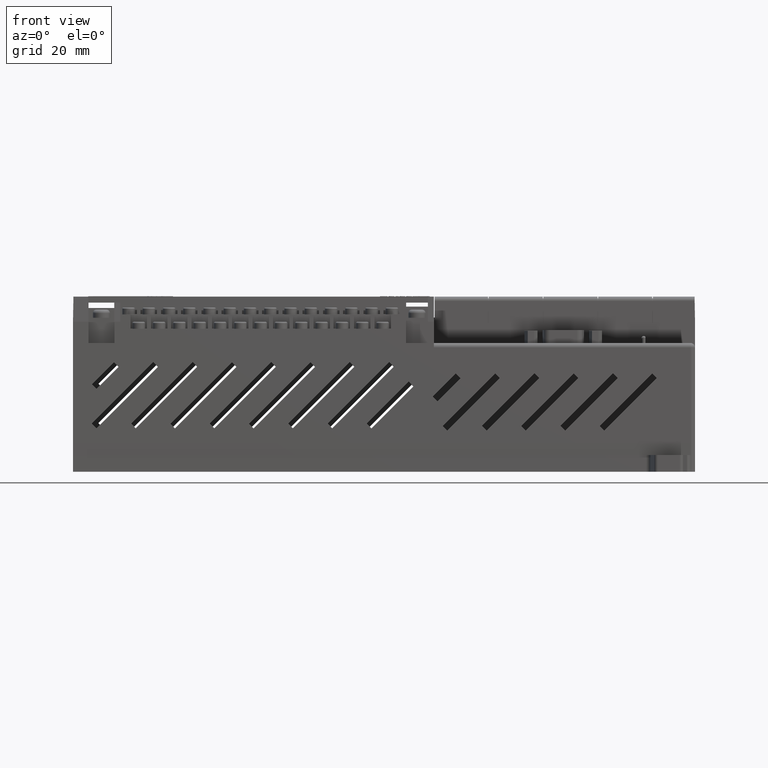
[diagram: clean part render]
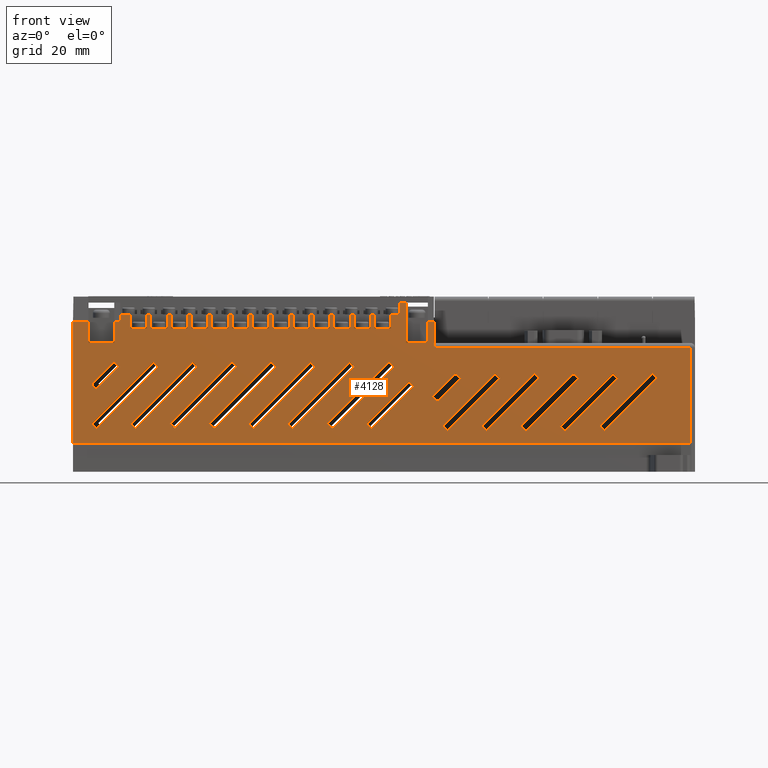
[diagram: same view with one face highlighted and labeled with its STEP entity id]
A machine part, front view. The second image highlights one B-rep face of the part: STEP entity #4128.
In plain terms, the highlighted planar face has unit normal (0, 1, 0).
Its self-contained STEP definition (entity closure, byte-faithful):
#786 = VERTEX_POINT ( 'NONE', #9794 ) ;
#876 = VERTEX_POINT ( 'NONE', #9962 ) ;
#878 = EDGE_CURVE ( 'NONE', #876, #786, #9960, .T. ) ;
#1369 = VERTEX_POINT ( 'NONE', #11360 ) ;
#1576 = EDGE_CURVE ( 'NONE', #1369, #1600, #11907, .T. ) ;
#1600 = VERTEX_POINT ( 'NONE', #11861 ) ;
#1657 = VERTEX_POINT ( 'NONE', #11987 ) ;
#1662 = EDGE_CURVE ( 'NONE', #1796, #1657, #12093, .T. ) ;
#1796 = VERTEX_POINT ( 'NONE', #12453 ) ;
#2011 = VERTEX_POINT ( 'NONE', #13154 ) ;
#2160 = VERTEX_POINT ( 'NONE', #13516 ) ;
#2167 = EDGE_CURVE ( 'NONE', #2011, #2160, #13498, .T. ) ;
#2282 = EDGE_CURVE ( 'NONE', #2371, #2475, #13926, .T. ) ;
#2371 = VERTEX_POINT ( 'NONE', #14176 ) ;
#2475 = VERTEX_POINT ( 'NONE', #14540 ) ;
#2505 = VERTEX_POINT ( 'NONE', #14595 ) ;
#2570 = VERTEX_POINT ( 'NONE', #14739 ) ;
#2737 = EDGE_CURVE ( 'NONE', #2505, #2570, #15169, .T. ) ;
#3604 = VERTEX_POINT ( 'NONE', #17275 ) ;
#3608 = EDGE_CURVE ( 'NONE', #3604, #3609, #17273, .T. ) ;
#3609 = VERTEX_POINT ( 'NONE', #17268 ) ;
#3639 = ORIENTED_EDGE ( 'NONE', *, *, #4413, .F. ) ;
#3648 = VERTEX_POINT ( 'NONE', #17390 ) ;
#3653 = EDGE_CURVE ( 'NONE', #3648, #3672, #17379, .T. ) ;
#3672 = VERTEX_POINT ( 'NONE', #17582 ) ;
#3718 = VERTEX_POINT ( 'NONE', #17665 ) ;
#3826 = EDGE_CURVE ( 'NONE', #3718, #3827, #17909, .T. ) ;
#3827 = VERTEX_POINT ( 'NONE', #17903 ) ;
#3869 = VERTEX_POINT ( 'NONE', #18026 ) ;
#3873 = EDGE_CURVE ( 'NONE', #3869, #3875, #18025, .T. ) ;
#3875 = VERTEX_POINT ( 'NONE', #18020 ) ;
#4048 = EDGE_CURVE ( 'NONE', #4050, #4096, #18765, .T. ) ;
#4050 = VERTEX_POINT ( 'NONE', #18760 ) ;
#4079 = ORIENTED_EDGE ( 'NONE', *, *, #4521, .F. ) ;
#4096 = VERTEX_POINT ( 'NONE', #18867 ) ;
#4100 = EDGE_CURVE ( 'NONE', #3609, #4101, #18864, .T. ) ;
#4101 = VERTEX_POINT ( 'NONE', #18972 ) ;
#4128 = ADVANCED_FACE ( 'NONE', ( #19013, #19012, #19011, #19009, #19008, #19007, #19005, #19004, #19003, #19002, #19001, #19000, #18999, #18998, #18997, #18996 ), #19074, .F. ) ;
#4130 = EDGE_LOOP ( 'NONE', ( #4215, #4217, #4232, #4237, #4240, #4247, #4188, #4191, #4192, #4196, #4203, #4209, #4323, #4327, #4179, #4181, #4183, #4187, #4301, #4309, #4311, #4314, #4319, #4322, #4277, #4282, #4285, #4287, #4288, #3639, #4417, #4256, #4258, #4265, #4271, #4394, #4396, #4401, #4404, #4406, #4407, #4365, #4371, #4375, #4377, #4383, #4390, #4340, #4343, #4350, #4356, #4359, #4361, #4474, #4480, #4483, #4484, #4486, #4335, #4337, #4452, #4455, #4456, #4461, #4468, #4432, #4433, #4435, #4437, #4439, #4441 ) ) ;
#4153 = VERTEX_POINT ( 'NONE', #19185 ) ;
#4157 = EDGE_CURVE ( 'NONE', #4153, #4160, #19181, .T. ) ;
#4160 = VERTEX_POINT ( 'NONE', #19173 ) ;
#4179 = ORIENTED_EDGE ( 'NONE', *, *, #4180, .T. ) ;
#4180 = EDGE_CURVE ( 'NONE', #4331, #62481, #19263, .T. ) ;
#4181 = ORIENTED_EDGE ( 'NONE', *, *, #61944, .T. ) ;
#4183 = ORIENTED_EDGE ( 'NONE', *, *, #4184, .F. ) ;
#4184 = EDGE_CURVE ( 'NONE', #4185, #61935, #19240, .T. ) ;
#4185 = VERTEX_POINT ( 'NONE', #19234 ) ;
#4187 = ORIENTED_EDGE ( 'NONE', *, *, #4296, .F. ) ;
#4188 = ORIENTED_EDGE ( 'NONE', *, *, #4190, .T. ) ;
#4190 = EDGE_CURVE ( 'NONE', #4251, #62039, #19232, .T. ) ;
#4191 = ORIENTED_EDGE ( 'NONE', *, *, #62015, .T. ) ;
#4192 = ORIENTED_EDGE ( 'NONE', *, *, #4193, .F. ) ;
#4193 = EDGE_CURVE ( 'NONE', #4195, #62021, #19226, .T. ) ;
#4195 = VERTEX_POINT ( 'NONE', #19221 ) ;
#4196 = ORIENTED_EDGE ( 'NONE', *, *, #4197, .F. ) ;
#4197 = EDGE_CURVE ( 'NONE', #4202, #4195, #19218, .T. ) ;
#4202 = VERTEX_POINT ( 'NONE', #19214 ) ;
#4203 = ORIENTED_EDGE ( 'NONE', *, *, #4206, .T. ) ;
#4206 = EDGE_CURVE ( 'NONE', #4202, #61999, #19207, .T. ) ;
#4209 = ORIENTED_EDGE ( 'NONE', *, *, #61967, .T. ) ;
#4210 = VERTEX_POINT ( 'NONE', #19326 ) ;
#4215 = ORIENTED_EDGE ( 'NONE', *, *, #4048, .T. ) ;
#4217 = ORIENTED_EDGE ( 'NONE', *, *, #4222, .F. ) ;
#4222 = EDGE_CURVE ( 'NONE', #4228, #4096, #19311, .T. ) ;
#4228 = VERTEX_POINT ( 'NONE', #19295 ) ;
#4232 = ORIENTED_EDGE ( 'NONE', *, *, #4235, .T. ) ;
#4235 = EDGE_CURVE ( 'NONE', #4228, #62269, #19290, .T. ) ;
#4237 = ORIENTED_EDGE ( 'NONE', *, *, #62219, .T. ) ;
#4240 = ORIENTED_EDGE ( 'NONE', *, *, #4242, .F. ) ;
#4242 = EDGE_CURVE ( 'NONE', #4245, #62329, #19268, .T. ) ;
#4245 = VERTEX_POINT ( 'NONE', #19390 ) ;
#4247 = ORIENTED_EDGE ( 'NONE', *, *, #4249, .F. ) ;
#4249 = EDGE_CURVE ( 'NONE', #4251, #4245, #19385, .T. ) ;
#4251 = VERTEX_POINT ( 'NONE', #19380 ) ;
#4256 = ORIENTED_EDGE ( 'NONE', *, *, #5718, .T. ) ;
#4258 = ORIENTED_EDGE ( 'NONE', *, *, #4260, .F. ) ;
#4260 = EDGE_CURVE ( 'NONE', #4263, #5726, #19373, .T. ) ;
#4263 = VERTEX_POINT ( 'NONE', #19368 ) ;
#4265 = ORIENTED_EDGE ( 'NONE', *, *, #4267, .F. ) ;
#4267 = EDGE_CURVE ( 'NONE', #4269, #4263, #19366, .T. ) ;
#4269 = VERTEX_POINT ( 'NONE', #19360 ) ;
#4271 = ORIENTED_EDGE ( 'NONE', *, *, #4275, .T. ) ;
#4275 = EDGE_CURVE ( 'NONE', #4269, #2505, #19352, .T. ) ;
#4277 = ORIENTED_EDGE ( 'NONE', *, *, #4279, .F. ) ;
#4279 = EDGE_CURVE ( 'NONE', #4281, #68655, #19347, .T. ) ;
#4281 = VERTEX_POINT ( 'NONE', #19338 ) ;
#4282 = ORIENTED_EDGE ( 'NONE', *, *, #4283, .F. ) ;
#4283 = EDGE_CURVE ( 'NONE', #4284, #4281, #19445, .T. ) ;
#4284 = VERTEX_POINT ( 'NONE', #19438 ) ;
#4285 = ORIENTED_EDGE ( 'NONE', *, *, #4286, .T. ) ;
#4286 = EDGE_CURVE ( 'NONE', #4284, #5739, #19436, .T. ) ;
#4287 = ORIENTED_EDGE ( 'NONE', *, *, #68825, .T. ) ;
#4288 = ORIENTED_EDGE ( 'NONE', *, *, #4292, .F. ) ;
#4292 = EDGE_CURVE ( 'NONE', #4295, #68691, #19429, .T. ) ;
#4295 = VERTEX_POINT ( 'NONE', #19418 ) ;
#4296 = EDGE_CURVE ( 'NONE', #4298, #4185, #19417, .T. ) ;
#4298 = VERTEX_POINT ( 'NONE', #19412 ) ;
#4301 = ORIENTED_EDGE ( 'NONE', *, *, #4304, .T. ) ;
#4304 = EDGE_CURVE ( 'NONE', #4298, #68641, #19398, .T. ) ;
#4309 = ORIENTED_EDGE ( 'NONE', *, *, #68728, .T. ) ;
#4311 = ORIENTED_EDGE ( 'NONE', *, *, #4312, .F. ) ;
#4312 = EDGE_CURVE ( 'NONE', #4313, #68629, #19486, .T. ) ;
#4313 = VERTEX_POINT ( 'NONE', #19481 ) ;
#4314 = ORIENTED_EDGE ( 'NONE', *, *, #4315, .F. ) ;
#4315 = EDGE_CURVE ( 'NONE', #4317, #4313, #19478, .T. ) ;
#4317 = VERTEX_POINT ( 'NONE', #19473 ) ;
#4319 = ORIENTED_EDGE ( 'NONE', *, *, #4321, .T. ) ;
#4321 = EDGE_CURVE ( 'NONE', #4317, #68391, #19470, .T. ) ;
#4322 = ORIENTED_EDGE ( 'NONE', *, *, #68658, .T. ) ;
#4323 = ORIENTED_EDGE ( 'NONE', *, *, #4324, .F. ) ;
#4324 = EDGE_CURVE ( 'NONE', #4210, #61978, #19466, .T. ) ;
#4327 = ORIENTED_EDGE ( 'NONE', *, *, #4329, .F. ) ;
#4329 = EDGE_CURVE ( 'NONE', #4331, #4210, #19460, .T. ) ;
#4331 = VERTEX_POINT ( 'NONE', #19454 ) ;
#4333 = EDGE_CURVE ( 'NONE', #3672, #3604, #19450, .T. ) ;
#4335 = ORIENTED_EDGE ( 'NONE', *, *, #3653, .F. ) ;
#4337 = ORIENTED_EDGE ( 'NONE', *, *, #4339, .F. ) ;
#4339 = EDGE_CURVE ( 'NONE', #4451, #3648, #19552, .T. ) ;
#4340 = ORIENTED_EDGE ( 'NONE', *, *, #1662, .T. ) ;
#4343 = ORIENTED_EDGE ( 'NONE', *, *, #4345, .F. ) ;
#4345 = EDGE_CURVE ( 'NONE', #4348, #1657, #19542, .T. ) ;
#4348 = VERTEX_POINT ( 'NONE', #19531 ) ;
#4350 = ORIENTED_EDGE ( 'NONE', *, *, #4353, .F. ) ;
#4353 = EDGE_CURVE ( 'NONE', #4355, #4348, #19527, .T. ) ;
#4355 = VERTEX_POINT ( 'NONE', #19522 ) ;
#4356 = ORIENTED_EDGE ( 'NONE', *, *, #4357, .T. ) ;
#4357 = EDGE_CURVE ( 'NONE', #4355, #1369, #19519, .T. ) ;
#4359 = ORIENTED_EDGE ( 'NONE', *, *, #1576, .T. ) ;
#4361 = ORIENTED_EDGE ( 'NONE', *, *, #4363, .F. ) ;
#4363 = EDGE_CURVE ( 'NONE', #4472, #1600, #19513, .T. ) ;
#4365 = ORIENTED_EDGE ( 'NONE', *, *, #4367, .F. ) ;
#4367 = EDGE_CURVE ( 'NONE', #4369, #4411, #19508, .T. ) ;
#4369 = VERTEX_POINT ( 'NONE', #19501 ) ;
#4371 = ORIENTED_EDGE ( 'NONE', *, *, #4373, .T. ) ;
#4373 = EDGE_CURVE ( 'NONE', #4369, #2011, #19053, .T. ) ;
#4375 = ORIENTED_EDGE ( 'NONE', *, *, #2167, .T. ) ;
#4377 = ORIENTED_EDGE ( 'NONE', *, *, #4379, .F. ) ;
#4379 = EDGE_CURVE ( 'NONE', #4381, #2160, #19615, .T. ) ;
#4381 = VERTEX_POINT ( 'NONE', #19609 ) ;
#4383 = ORIENTED_EDGE ( 'NONE', *, *, #4385, .F. ) ;
#4385 = EDGE_CURVE ( 'NONE', #4388, #4381, #19605, .T. ) ;
#4388 = VERTEX_POINT ( 'NONE', #19598 ) ;
#4390 = ORIENTED_EDGE ( 'NONE', *, *, #4392, .T. ) ;
#4392 = EDGE_CURVE ( 'NONE', #4388, #1796, #19590, .T. ) ;
#4394 = ORIENTED_EDGE ( 'NONE', *, *, #2737, .T. ) ;
#4396 = ORIENTED_EDGE ( 'NONE', *, *, #4398, .F. ) ;
#4398 = EDGE_CURVE ( 'NONE', #4399, #2570, #19578, .T. ) ;
#4399 = VERTEX_POINT ( 'NONE', #19573 ) ;
#4401 = ORIENTED_EDGE ( 'NONE', *, *, #4402, .F. ) ;
#4402 = EDGE_CURVE ( 'NONE', #4403, #4399, #19570, .T. ) ;
#4403 = VERTEX_POINT ( 'NONE', #19565 ) ;
#4404 = ORIENTED_EDGE ( 'NONE', *, *, #4405, .T. ) ;
#4405 = EDGE_CURVE ( 'NONE', #4403, #2371, #19562, .T. ) ;
#4406 = ORIENTED_EDGE ( 'NONE', *, *, #2282, .T. ) ;
#4407 = ORIENTED_EDGE ( 'NONE', *, *, #4409, .F. ) ;
#4409 = EDGE_CURVE ( 'NONE', #4411, #2475, #19557, .T. ) ;
#4411 = VERTEX_POINT ( 'NONE', #19673 ) ;
#4413 = EDGE_CURVE ( 'NONE', #4415, #4295, #19670, .T. ) ;
#4415 = VERTEX_POINT ( 'NONE', #19662 ) ;
#4417 = ORIENTED_EDGE ( 'NONE', *, *, #4418, .T. ) ;
#4418 = EDGE_CURVE ( 'NONE', #4415, #5743, #19654, .T. ) ;
#4419 = VERTEX_POINT ( 'NONE', #19647 ) ;
#4421 = ORIENTED_EDGE ( 'NONE', *, *, #4422, .F. ) ;
#4422 = EDGE_CURVE ( 'NONE', #4423, #4419, #19644, .T. ) ;
#4423 = VERTEX_POINT ( 'NONE', #19639 ) ;
#4424 = ORIENTED_EDGE ( 'NONE', *, *, #4425, .F. ) ;
#4425 = EDGE_CURVE ( 'NONE', #4449, #4423, #19635, .T. ) ;
#4426 = EDGE_LOOP ( 'NONE', ( #4427, #4079, #4523, #4527 ) ) ;
#4427 = ORIENTED_EDGE ( 'NONE', *, *, #4429, .F. ) ;
#4429 = EDGE_CURVE ( 'NONE', #4430, #4431, #19629, .T. ) ;
#4430 = VERTEX_POINT ( 'NONE', #19623 ) ;
#4431 = VERTEX_POINT ( 'NONE', #19622 ) ;
#4432 = ORIENTED_EDGE ( 'NONE', *, *, #4157, .F. ) ;
#4433 = ORIENTED_EDGE ( 'NONE', *, *, #4434, .F. ) ;
#4434 = EDGE_CURVE ( 'NONE', #3827, #4153, #19620, .T. ) ;
#4435 = ORIENTED_EDGE ( 'NONE', *, *, #3826, .F. ) ;
#4437 = ORIENTED_EDGE ( 'NONE', *, *, #4438, .T. ) ;
#4438 = EDGE_CURVE ( 'NONE', #3718, #3875, #19735, .T. ) ;
#4439 = ORIENTED_EDGE ( 'NONE', *, *, #3873, .F. ) ;
#4441 = ORIENTED_EDGE ( 'NONE', *, *, #4442, .F. ) ;
#4442 = EDGE_CURVE ( 'NONE', #4050, #3869, #19727, .T. ) ;
#4444 = EDGE_LOOP ( 'NONE', ( #4445, #4539, #4421, #4424 ) ) ;
#4445 = ORIENTED_EDGE ( 'NONE', *, *, #4446, .F. ) ;
#4446 = EDGE_CURVE ( 'NONE', #4448, #4449, #19719, .T. ) ;
#4448 = VERTEX_POINT ( 'NONE', #19712 ) ;
#4449 = VERTEX_POINT ( 'NONE', #19709 ) ;
#4451 = VERTEX_POINT ( 'NONE', #19707 ) ;
#4452 = ORIENTED_EDGE ( 'NONE', *, *, #4453, .F. ) ;
#4453 = EDGE_CURVE ( 'NONE', #786, #4451, #19699, .T. ) ;
#4455 = ORIENTED_EDGE ( 'NONE', *, *, #878, .F. ) ;
#4456 = ORIENTED_EDGE ( 'NONE', *, *, #4457, .T. ) ;
#4457 = EDGE_CURVE ( 'NONE', #876, #4459, #19691, .T. ) ;
#4459 = VERTEX_POINT ( 'NONE', #19686 ) ;
#4461 = ORIENTED_EDGE ( 'NONE', *, *, #4463, .T. ) ;
#4463 = EDGE_CURVE ( 'NONE', #4459, #4466, #19683, .T. ) ;
#4466 = VERTEX_POINT ( 'NONE', #19678 ) ;
#4468 = ORIENTED_EDGE ( 'NONE', *, *, #4470, .T. ) ;
#4470 = EDGE_CURVE ( 'NONE', #4466, #4160, #19798, .T. ) ;
#4472 = VERTEX_POINT ( 'NONE', #19794 ) ;
#4474 = ORIENTED_EDGE ( 'NONE', *, *, #4476, .F. ) ;
#4476 = EDGE_CURVE ( 'NONE', #4478, #4472, #19791, .T. ) ;
#4478 = VERTEX_POINT ( 'NONE', #19787 ) ;
#4480 = ORIENTED_EDGE ( 'NONE', *, *, #4481, .F. ) ;
#4481 = EDGE_CURVE ( 'NONE', #4101, #4478, #19782, .T. ) ;
#4483 = ORIENTED_EDGE ( 'NONE', *, *, #4100, .F. ) ;
#4484 = ORIENTED_EDGE ( 'NONE', *, *, #3608, .F. ) ;
#4486 = ORIENTED_EDGE ( 'NONE', *, *, #4333, .F. ) ;
#4488 = VERTEX_POINT ( 'NONE', #19777 ) ;
#4490 = VERTEX_POINT ( 'NONE', #19774 ) ;
#4492 = ORIENTED_EDGE ( 'NONE', *, *, #4493, .F. ) ;
#4493 = EDGE_CURVE ( 'NONE', #4494, #4488, #19769, .T. ) ;
#4494 = VERTEX_POINT ( 'NONE', #19759 ) ;
#4495 = ORIENTED_EDGE ( 'NONE', *, *, #4496, .F. ) ;
#4496 = EDGE_CURVE ( 'NONE', #4497, #4494, #19755, .T. ) ;
#4497 = VERTEX_POINT ( 'NONE', #19750 ) ;
#4498 = ORIENTED_EDGE ( 'NONE', *, *, #4499, .F. ) ;
#4499 = EDGE_CURVE ( 'NONE', #4500, #4538, #19747, .T. ) ;
#4500 = VERTEX_POINT ( 'NONE', #19742 ) ;
#4502 = ORIENTED_EDGE ( 'NONE', *, *, #4503, .F. ) ;
#4503 = EDGE_CURVE ( 'NONE', #4533, #4500, #19858, .T. ) ;
#4505 = EDGE_LOOP ( 'NONE', ( #4508, #4513, #4518, #4605 ) ) ;
#4508 = ORIENTED_EDGE ( 'NONE', *, *, #4510, .F. ) ;
#4510 = EDGE_CURVE ( 'NONE', #4511, #4512, #19840, .T. ) ;
#4511 = VERTEX_POINT ( 'NONE', #19834 ) ;
#4512 = VERTEX_POINT ( 'NONE', #19831 ) ;
#4513 = ORIENTED_EDGE ( 'NONE', *, *, #4516, .F. ) ;
#4516 = EDGE_CURVE ( 'NONE', #4517, #4511, #19822, .T. ) ;
#4517 = VERTEX_POINT ( 'NONE', #19815 ) ;
#4518 = ORIENTED_EDGE ( 'NONE', *, *, #4519, .F. ) ;
#4519 = EDGE_CURVE ( 'NONE', #4520, #4517, #19809, .T. ) ;
#4520 = VERTEX_POINT ( 'NONE', #19913 ) ;
#4521 = EDGE_CURVE ( 'NONE', #4522, #4430, #19909, .T. ) ;
#4522 = VERTEX_POINT ( 'NONE', #19902 ) ;
#4523 = ORIENTED_EDGE ( 'NONE', *, *, #4524, .F. ) ;
#4524 = EDGE_CURVE ( 'NONE', #4525, #4522, #19900, .T. ) ;
#4525 = VERTEX_POINT ( 'NONE', #19894 ) ;
#4527 = ORIENTED_EDGE ( 'NONE', *, *, #4528, .F. ) ;
#4528 = EDGE_CURVE ( 'NONE', #4431, #4525, #19890, .T. ) ;
#4529 = EDGE_LOOP ( 'NONE', ( #4530, #4534, #4498, #4502 ) ) ;
#4530 = ORIENTED_EDGE ( 'NONE', *, *, #4531, .F. ) ;
#4531 = EDGE_CURVE ( 'NONE', #4532, #4533, #19884, .T. ) ;
#4532 = VERTEX_POINT ( 'NONE', #19880 ) ;
#4533 = VERTEX_POINT ( 'NONE', #19879 ) ;
#4534 = ORIENTED_EDGE ( 'NONE', *, *, #4536, .F. ) ;
#4536 = EDGE_CURVE ( 'NONE', #4538, #4532, #19876, .T. ) ;
#4538 = VERTEX_POINT ( 'NONE', #19872 ) ;
#4539 = ORIENTED_EDGE ( 'NONE', *, *, #4541, .F. ) ;
#4541 = EDGE_CURVE ( 'NONE', #4419, #4448, #19867, .T. ) ;
#4543 = ORIENTED_EDGE ( 'NONE', *, *, #4544, .F. ) ;
#4544 = EDGE_CURVE ( 'NONE', #4546, #4549, #19968, .T. ) ;
#4546 = VERTEX_POINT ( 'NONE', #19963 ) ;
#4549 = VERTEX_POINT ( 'NONE', #19957 ) ;
#4551 = ORIENTED_EDGE ( 'NONE', *, *, #4553, .F. ) ;
#4553 = EDGE_CURVE ( 'NONE', #4554, #4546, #19949, .T. ) ;
#4554 = VERTEX_POINT ( 'NONE', #19942 ) ;
#4556 = ORIENTED_EDGE ( 'NONE', *, *, #4558, .F. ) ;
#4558 = EDGE_CURVE ( 'NONE', #4559, #4554, #19940, .T. ) ;
#4559 = VERTEX_POINT ( 'NONE', #19934 ) ;
#4561 = ORIENTED_EDGE ( 'NONE', *, *, #4563, .F. ) ;
#4563 = EDGE_CURVE ( 'NONE', #4549, #4559, #19932, .T. ) ;
#4565 = EDGE_LOOP ( 'NONE', ( #4567, #4673, #4679, #4686 ) ) ;
#4567 = ORIENTED_EDGE ( 'NONE', *, *, #4568, .F. ) ;
#4568 = EDGE_CURVE ( 'NONE', #4669, #4671, #19926, .T. ) ;
#4571 = ORIENTED_EDGE ( 'NONE', *, *, #4572, .F. ) ;
#4572 = EDGE_CURVE ( 'NONE', #4490, #4497, #19921, .T. ) ;
#4575 = EDGE_LOOP ( 'NONE', ( #4576, #4586, #4591, #4596 ) ) ;
#4576 = ORIENTED_EDGE ( 'NONE', *, *, #4578, .F. ) ;
#4578 = EDGE_CURVE ( 'NONE', #4583, #4585, #19920, .T. ) ;
#4583 = VERTEX_POINT ( 'NONE', #20028 ) ;
#4585 = VERTEX_POINT ( 'NONE', #20026 ) ;
#4586 = ORIENTED_EDGE ( 'NONE', *, *, #4588, .F. ) ;
#4588 = EDGE_CURVE ( 'NONE', #4590, #4583, #20022, .T. ) ;
#4590 = VERTEX_POINT ( 'NONE', #20016 ) ;
#4591 = ORIENTED_EDGE ( 'NONE', *, *, #4593, .F. ) ;
#4593 = EDGE_CURVE ( 'NONE', #4595, #4590, #20011, .T. ) ;
#4595 = VERTEX_POINT ( 'NONE', #20003 ) ;
#4596 = ORIENTED_EDGE ( 'NONE', *, *, #4598, .F. ) ;
#4598 = EDGE_CURVE ( 'NONE', #4585, #4595, #19994, .T. ) ;
#4601 = EDGE_LOOP ( 'NONE', ( #4543, #4551, #4556, #4561 ) ) ;
#4605 = ORIENTED_EDGE ( 'NONE', *, *, #4608, .F. ) ;
#4608 = EDGE_CURVE ( 'NONE', #4512, #4520, #20044, .T. ) ;
#4610 = EDGE_LOOP ( 'NONE', ( #4612, #4492, #4495, #4571 ) ) ;
#4612 = ORIENTED_EDGE ( 'NONE', *, *, #4614, .F. ) ;
#4614 = EDGE_CURVE ( 'NONE', #4488, #4490, #20039, .T. ) ;
#4619 = ORIENTED_EDGE ( 'NONE', *, *, #4621, .F. ) ;
#4621 = EDGE_CURVE ( 'NONE', #4663, #4777, #20035, .T. ) ;
#4624 = EDGE_LOOP ( 'NONE', ( #4626, #4634, #69444, #4755 ) ) ;
#4626 = ORIENTED_EDGE ( 'NONE', *, *, #4628, .F. ) ;
#4628 = EDGE_CURVE ( 'NONE', #4630, #4632, #20088, .T. ) ;
#4630 = VERTEX_POINT ( 'NONE', #20084 ) ;
#4632 = VERTEX_POINT ( 'NONE', #20083 ) ;
#4634 = ORIENTED_EDGE ( 'NONE', *, *, #4636, .F. ) ;
#4636 = EDGE_CURVE ( 'NONE', #4639, #4630, #20082, .T. ) ;
#4639 = VERTEX_POINT ( 'NONE', #20077 ) ;
#4640 = ORIENTED_EDGE ( 'NONE', *, *, #4642, .F. ) ;
#4642 = EDGE_CURVE ( 'NONE', #4643, #4697, #20076, .T. ) ;
#4643 = VERTEX_POINT ( 'NONE', #20072 ) ;
#4644 = ORIENTED_EDGE ( 'NONE', *, *, #4645, .F. ) ;
#4645 = EDGE_CURVE ( 'NONE', #4646, #4643, #20071, .T. ) ;
#4646 = VERTEX_POINT ( 'NONE', #20067 ) ;
#4647 = ORIENTED_EDGE ( 'NONE', *, *, #4648, .F. ) ;
#4648 = EDGE_CURVE ( 'NONE', #4699, #4646, #20066, .T. ) ;
#4650 = EDGE_LOOP ( 'NONE', ( #4652, #4665, #4774, #4619 ) ) ;
#4652 = ORIENTED_EDGE ( 'NONE', *, *, #4659, .F. ) ;
#4659 = EDGE_CURVE ( 'NONE', #4661, #4663, #20062, .T. ) ;
#4661 = VERTEX_POINT ( 'NONE', #20058 ) ;
#4663 = VERTEX_POINT ( 'NONE', #20057 ) ;
#4665 = ORIENTED_EDGE ( 'NONE', *, *, #4667, .F. ) ;
#4667 = EDGE_CURVE ( 'NONE', #4773, #4661, #20119, .T. ) ;
#4669 = VERTEX_POINT ( 'NONE', #20115 ) ;
#4671 = VERTEX_POINT ( 'NONE', #20114 ) ;
#4673 = ORIENTED_EDGE ( 'NONE', *, *, #4675, .F. ) ;
#4675 = EDGE_CURVE ( 'NONE', #4677, #4669, #20113, .T. ) ;
#4677 = VERTEX_POINT ( 'NONE', #20109 ) ;
#4679 = ORIENTED_EDGE ( 'NONE', *, *, #4681, .F. ) ;
#4681 = EDGE_CURVE ( 'NONE', #4684, #4677, #20108, .T. ) ;
#4684 = VERTEX_POINT ( 'NONE', #20104 ) ;
#4686 = ORIENTED_EDGE ( 'NONE', *, *, #4688, .F. ) ;
#4688 = EDGE_CURVE ( 'NONE', #4671, #4684, #20103, .T. ) ;
#4691 = EDGE_LOOP ( 'NONE', ( #4692, #4640, #4644, #4647 ) ) ;
#4692 = ORIENTED_EDGE ( 'NONE', *, *, #4693, .F. ) ;
#4693 = EDGE_CURVE ( 'NONE', #4697, #4699, #20099, .T. ) ;
#4697 = VERTEX_POINT ( 'NONE', #20095 ) ;
#4699 = VERTEX_POINT ( 'NONE', #20094 ) ;
#4702 = EDGE_CURVE ( 'NONE', #4704, #4859, #20093, .T. ) ;
#4704 = VERTEX_POINT ( 'NONE', #20089 ) ;
#4706 = ORIENTED_EDGE ( 'NONE', *, *, #4708, .F. ) ;
#4708 = EDGE_CURVE ( 'NONE', #4710, #4704, #20148, .T. ) ;
#4710 = VERTEX_POINT ( 'NONE', #20144 ) ;
#4711 = ORIENTED_EDGE ( 'NONE', *, *, #4712, .F. ) ;
#4712 = EDGE_CURVE ( 'NONE', #4860, #4710, #20143, .T. ) ;
#4715 = EDGE_LOOP ( 'NONE', ( #4799, #4813, #4821, #4829 ) ) ;
#4718 = ORIENTED_EDGE ( 'NONE', *, *, #4719, .F. ) ;
#4719 = EDGE_CURVE ( 'NONE', #4762, #4772, #20139, .T. ) ;
#4722 = EDGE_LOOP ( 'NONE', ( #4724, #4733, #4741, #4747 ) ) ;
#4724 = ORIENTED_EDGE ( 'NONE', *, *, #4726, .F. ) ;
#4726 = EDGE_CURVE ( 'NONE', #4729, #4731, #20135, .T. ) ;
#4729 = VERTEX_POINT ( 'NONE', #20131 ) ;
#4731 = VERTEX_POINT ( 'NONE', #20130 ) ;
#4733 = ORIENTED_EDGE ( 'NONE', *, *, #4735, .F. ) ;
#4735 = EDGE_CURVE ( 'NONE', #4737, #4729, #20129, .T. ) ;
#4737 = VERTEX_POINT ( 'NONE', #20125 ) ;
#4741 = ORIENTED_EDGE ( 'NONE', *, *, #4743, .F. ) ;
#4743 = EDGE_CURVE ( 'NONE', #4745, #4737, #20124, .T. ) ;
#4745 = VERTEX_POINT ( 'NONE', #20120 ) ;
#4747 = ORIENTED_EDGE ( 'NONE', *, *, #4844, .F. ) ;
#4751 = EDGE_CURVE ( 'NONE', #4753, #4639, #20178, .T. ) ;
#4753 = VERTEX_POINT ( 'NONE', #20174 ) ;
#4755 = ORIENTED_EDGE ( 'NONE', *, *, #4756, .F. ) ;
#4756 = EDGE_CURVE ( 'NONE', #4632, #4753, #20173, .T. ) ;
#4758 = EDGE_LOOP ( 'NONE', ( #4759, #4763, #4767, #4718 ) ) ;
#4759 = ORIENTED_EDGE ( 'NONE', *, *, #4760, .F. ) ;
#4760 = EDGE_CURVE ( 'NONE', #4761, #4762, #20169, .T. ) ;
#4761 = VERTEX_POINT ( 'NONE', #20165 ) ;
#4762 = VERTEX_POINT ( 'NONE', #20164 ) ;
#4763 = ORIENTED_EDGE ( 'NONE', *, *, #4764, .F. ) ;
#4764 = EDGE_CURVE ( 'NONE', #4765, #4761, #20163, .T. ) ;
#4765 = VERTEX_POINT ( 'NONE', #20159 ) ;
#4767 = ORIENTED_EDGE ( 'NONE', *, *, #4769, .F. ) ;
#4769 = EDGE_CURVE ( 'NONE', #4772, #4765, #20158, .T. ) ;
#4772 = VERTEX_POINT ( 'NONE', #20154 ) ;
#4773 = VERTEX_POINT ( 'NONE', #20153 ) ;
#4774 = ORIENTED_EDGE ( 'NONE', *, *, #4776, .F. ) ;
#4776 = EDGE_CURVE ( 'NONE', #4777, #4773, #20152, .T. ) ;
#4777 = VERTEX_POINT ( 'NONE', #20210 ) ;
#4799 = ORIENTED_EDGE ( 'NONE', *, *, #4805, .F. ) ;
#4805 = EDGE_CURVE ( 'NONE', #4807, #4811, #20262, .T. ) ;
#4807 = VERTEX_POINT ( 'NONE', #20258 ) ;
#4811 = VERTEX_POINT ( 'NONE', #20257 ) ;
#4813 = ORIENTED_EDGE ( 'NONE', *, *, #4815, .F. ) ;
#4815 = EDGE_CURVE ( 'NONE', #4817, #4807, #20256, .T. ) ;
#4817 = VERTEX_POINT ( 'NONE', #20252 ) ;
#4821 = ORIENTED_EDGE ( 'NONE', *, *, #4823, .F. ) ;
#4823 = EDGE_CURVE ( 'NONE', #4826, #4817, #20251, .T. ) ;
#4826 = VERTEX_POINT ( 'NONE', #20247 ) ;
#4829 = ORIENTED_EDGE ( 'NONE', *, *, #4831, .F. ) ;
#4831 = EDGE_CURVE ( 'NONE', #4811, #4826, #20245, .T. ) ;
#4844 = EDGE_CURVE ( 'NONE', #4731, #4745, #20328, .T. ) ;
#4847 = EDGE_LOOP ( 'NONE', ( #4852, #4861, #4706, #4711 ) ) ;
#4852 = ORIENTED_EDGE ( 'NONE', *, *, #4857, .F. ) ;
#4857 = EDGE_CURVE ( 'NONE', #4859, #4860, #20320, .T. ) ;
#4859 = VERTEX_POINT ( 'NONE', #20316 ) ;
#4860 = VERTEX_POINT ( 'NONE', #20315 ) ;
#4861 = ORIENTED_EDGE ( 'NONE', *, *, #4702, .F. ) ;
#5718 = EDGE_CURVE ( 'NONE', #5743, #5726, #21632, .T. ) ;
#5726 = VERTEX_POINT ( 'NONE', #21624 ) ;
#5739 = VERTEX_POINT ( 'NONE', #21669 ) ;
#5743 = VERTEX_POINT ( 'NONE', #21662 ) ;
#9794 = CARTESIAN_POINT ( 'NONE',  ( -3.262450984251970900, -0.002932366666755821200, 5.454596033088856500 ) ) ;
#9957 = DIRECTION ( 'NONE',  ( -3.491483361109382100E-015, 0.0000000000000000000, 1.000000000000000000 ) ) ;
#9958 = VECTOR ( 'NONE', #9957, 39.37007874015748100 ) ;
#9959 = CARTESIAN_POINT ( 'NONE',  ( -3.262450984251967300, -0.002932366666755848900, 4.542449999999983700 ) ) ;
#9960 = LINE ( 'NONE', #9959, #9958 ) ;
#9962 = CARTESIAN_POINT ( 'NONE',  ( -3.262450984251964200, -0.002932366666755512000, 3.679774826308386300 ) ) ;
#11309 = CARTESIAN_POINT ( 'NONE',  ( -0.1028509842519709600, -0.002932366666755848900, 5.352449999999994800 ) ) ;
#11360 = CARTESIAN_POINT ( 'NONE',  ( -2.181850984251971300, -0.002932366666755848900, 5.352449999999987700 ) ) ;
#11812 = CARTESIAN_POINT ( 'NONE',  ( -0.04685098425197133800, -0.002932366666755585700, 5.352449999999994800 ) ) ;
#11853 = CARTESIAN_POINT ( 'NONE',  ( 0.1941490157480297300, -0.002932366666755848900, 5.352449999999995700 ) ) ;
#11861 = CARTESIAN_POINT ( 'NONE',  ( -2.422850984251971400, -0.002932366666755185000, 5.352449999999987700 ) ) ;
#11901 = DIRECTION ( 'NONE',  ( -1.000000000000000000, 0.0000000000000000000, -3.491483361109382100E-015 ) ) ;
#11903 = VECTOR ( 'NONE', #11901, 39.37007874015748100 ) ;
#11905 = CARTESIAN_POINT ( 'NONE',  ( -3.262450984251970900, -0.002932366666755848900, 5.352449999999984200 ) ) ;
#11907 = LINE ( 'NONE', #11905, #11903 ) ;
#11940 = DIRECTION ( 'NONE',  ( -1.000000000000000000, 0.0000000000000000000, -3.491483361109382100E-015 ) ) ;
#11942 = VECTOR ( 'NONE', #11940, 39.37007874015748100 ) ;
#11943 = CARTESIAN_POINT ( 'NONE',  ( -3.262450984251970900, -0.002932366666755848900, 5.352449999999984200 ) ) ;
#11955 = LINE ( 'NONE', #11943, #11942 ) ;
#11958 = CARTESIAN_POINT ( 'NONE',  ( -0.3438509842519720200, -0.002932366666755535400, 5.352449999999993900 ) ) ;
#11987 = CARTESIAN_POINT ( 'NONE',  ( -2.125850984251971700, -0.002932366666755234800, 5.352449999999987700 ) ) ;
#12088 = DIRECTION ( 'NONE',  ( -1.000000000000000000, 0.0000000000000000000, -3.491483361109382100E-015 ) ) ;
#12089 = VECTOR ( 'NONE', #12088, 39.37007874015748100 ) ;
#12091 = CARTESIAN_POINT ( 'NONE',  ( -3.262450984251970900, -0.002932366666755848900, 5.352449999999984200 ) ) ;
#12093 = LINE ( 'NONE', #12091, #12089 ) ;
#12131 = CARTESIAN_POINT ( 'NONE',  ( -0.6408509842519716200, -0.002932366666755485100, 5.352449999999993000 ) ) ;
#12228 = DIRECTION ( 'NONE',  ( -1.000000000000000000, 0.0000000000000000000, -3.491483361109382100E-015 ) ) ;
#12230 = VECTOR ( 'NONE', #12228, 39.37007874015748100 ) ;
#12232 = CARTESIAN_POINT ( 'NONE',  ( -3.262450984251970900, -0.002932366666755848900, 5.352449999999984200 ) ) ;
#12233 = LINE ( 'NONE', #12232, #12230 ) ;
#12453 = CARTESIAN_POINT ( 'NONE',  ( -1.884850984251970700, -0.002932366666755848900, 5.352449999999988600 ) ) ;
#12465 = DIRECTION ( 'NONE',  ( -1.000000000000000000, 0.0000000000000000000, -3.491483361109382100E-015 ) ) ;
#12467 = VECTOR ( 'NONE', #12465, 39.37007874015748100 ) ;
#12469 = CARTESIAN_POINT ( 'NONE',  ( -3.262450984251970900, -0.002932366666755848900, 5.352449999999984200 ) ) ;
#12471 = LINE ( 'NONE', #12469, #12467 ) ;
#13154 = CARTESIAN_POINT ( 'NONE',  ( -1.587850984251971000, -0.002932366666755848900, 5.352449999999989500 ) ) ;
#13492 = DIRECTION ( 'NONE',  ( -1.000000000000000000, 0.0000000000000000000, -3.491483361109382100E-015 ) ) ;
#13493 = VECTOR ( 'NONE', #13492, 39.37007874015748100 ) ;
#13496 = CARTESIAN_POINT ( 'NONE',  ( -3.262450984251970900, -0.002932366666755848900, 5.352449999999984200 ) ) ;
#13498 = LINE ( 'NONE', #13496, #13493 ) ;
#13516 = CARTESIAN_POINT ( 'NONE',  ( -1.828850984251971100, -0.002932366666755285200, 5.352449999999988600 ) ) ;
#13922 = DIRECTION ( 'NONE',  ( -1.000000000000000000, 0.0000000000000000000, -3.491483361109382100E-015 ) ) ;
#13924 = VECTOR ( 'NONE', #13922, 39.37007874015748100 ) ;
#13925 = CARTESIAN_POINT ( 'NONE',  ( -3.262450984251970900, -0.002932366666755848900, 5.352449999999984200 ) ) ;
#13926 = LINE ( 'NONE', #13925, #13924 ) ;
#14176 = CARTESIAN_POINT ( 'NONE',  ( -1.290850984251970400, -0.002932366666755848900, 5.352449999999990400 ) ) ;
#14540 = CARTESIAN_POINT ( 'NONE',  ( -1.531850984251971400, -0.002932366666755335500, 5.352449999999989500 ) ) ;
#14595 = CARTESIAN_POINT ( 'NONE',  ( -0.9938509842519708300, -0.002932366666755848900, 5.352449999999991300 ) ) ;
#14739 = CARTESIAN_POINT ( 'NONE',  ( -1.234850984251970800, -0.002932366666755384900, 5.352449999999990400 ) ) ;
#15166 = DIRECTION ( 'NONE',  ( -1.000000000000000000, 0.0000000000000000000, -3.491483361109382100E-015 ) ) ;
#15167 = VECTOR ( 'NONE', #15166, 39.37007874015748100 ) ;
#15168 = CARTESIAN_POINT ( 'NONE',  ( -3.262450984251970900, -0.002932366666755848900, 5.352449999999984200 ) ) ;
#15169 = LINE ( 'NONE', #15168, #15167 ) ;
#17268 = CARTESIAN_POINT ( 'NONE',  ( -2.659350984251970900, -0.002932366666752938100, 5.454596033088968500 ) ) ;
#17269 = DIRECTION ( 'NONE',  ( -3.491483361109382100E-015, 0.0000000000000000000, 1.000000000000000000 ) ) ;
#17270 = VECTOR ( 'NONE', #17269, 39.37007874015748100 ) ;
#17272 = CARTESIAN_POINT ( 'NONE',  ( -2.659350984251969600, -0.002932366666755848900, 5.123472240551821600 ) ) ;
#17273 = LINE ( 'NONE', #17272, #17270 ) ;
#17275 = CARTESIAN_POINT ( 'NONE',  ( -2.659350984251969600, -0.002932366666755848900, 5.143472240551822100 ) ) ;
#17374 = DIRECTION ( 'NONE',  ( 3.491483361109382100E-015, 0.0000000000000000000, -1.000000000000000000 ) ) ;
#17375 = VECTOR ( 'NONE', #17374, 39.37007874015748100 ) ;
#17377 = CARTESIAN_POINT ( 'NONE',  ( -3.035350984251971300, -0.002932366666755848900, 5.822449999999985700 ) ) ;
#17379 = LINE ( 'NONE', #17377, #17375 ) ;
#17390 = CARTESIAN_POINT ( 'NONE',  ( -3.035350984251970400, -0.002932366666751512100, 5.454596033089024400 ) ) ;
#17582 = CARTESIAN_POINT ( 'NONE',  ( -3.035350984251969500, -0.002932366666755848900, 5.143472240551820300 ) ) ;
#17665 = CARTESIAN_POINT ( 'NONE',  ( 1.923649015748029900, -0.002932366666755848900, 5.143472240551837200 ) ) ;
#17903 = CARTESIAN_POINT ( 'NONE',  ( 1.923649015748028800, -0.002932366666752925100, 5.454596033088986200 ) ) ;
#17906 = DIRECTION ( 'NONE',  ( -3.491483361109382100E-015, 0.0000000000000000000, 1.000000000000000000 ) ) ;
#17907 = VECTOR ( 'NONE', #17906, 39.37007874015748100 ) ;
#17908 = CARTESIAN_POINT ( 'NONE',  ( 1.923649015748029900, -0.002932366666755848900, 5.123472240551838500 ) ) ;
#17909 = LINE ( 'NONE', #17908, #17907 ) ;
#18020 = CARTESIAN_POINT ( 'NONE',  ( 1.605649015748030300, -0.002932366666755848900, 5.143472240551836300 ) ) ;
#18021 = DIRECTION ( 'NONE',  ( 3.491483361109382100E-015, -0.0000000000000000000, -1.000000000000000000 ) ) ;
#18022 = VECTOR ( 'NONE', #18021, 39.37007874015748100 ) ;
#18024 = CARTESIAN_POINT ( 'NONE',  ( 1.605649015748030300, -0.002932366666755848900, 5.123472240551836700 ) ) ;
#18025 = LINE ( 'NONE', #18024, #18022 ) ;
#18026 = CARTESIAN_POINT ( 'NONE',  ( 1.605649015748028100, -0.002932366666750477800, 5.734450000000001600 ) ) ;
#18760 = CARTESIAN_POINT ( 'NONE',  ( 1.517649015748027800, -0.002932366666750385400, 5.734450000000000700 ) ) ;
#18761 = DIRECTION ( 'NONE',  ( 3.491483361109382100E-015, 0.0000000000000000000, -1.000000000000000000 ) ) ;
#18762 = VECTOR ( 'NONE', #18761, 39.37007874015748100 ) ;
#18764 = CARTESIAN_POINT ( 'NONE',  ( 1.517649015748032200, -0.002932366666755848900, 4.542450000000000500 ) ) ;
#18765 = LINE ( 'NONE', #18764, #18762 ) ;
#18864 = LINE ( 'NONE', #18978, #18976 ) ;
#18867 = CARTESIAN_POINT ( 'NONE',  ( 1.517649015748028200, -0.002932366666755848900, 5.560450000000000300 ) ) ;
#18972 = CARTESIAN_POINT ( 'NONE',  ( -2.571350984251971300, -0.002932366666755848900, 5.454596033088859200 ) ) ;
#18975 = DIRECTION ( 'NONE',  ( 1.000000000000000000, -0.0000000000000000000, 3.491483361109382100E-015 ) ) ;
#18976 = VECTOR ( 'NONE', #18975, 39.37007874015748100 ) ;
#18978 = CARTESIAN_POINT ( 'NONE',  ( -3.262450984251970900, -0.002932366666755627300, 5.454596033088856500 ) ) ;
#18996 = FACE_BOUND ( 'NONE', #4715, .T. ) ;
#18997 = FACE_BOUND ( 'NONE', #4847, .T. ) ;
#18998 = FACE_BOUND ( 'NONE', #4722, .T. ) ;
#18999 = FACE_BOUND ( 'NONE', #4758, .T. ) ;
#19000 = FACE_BOUND ( 'NONE', #4624, .T. ) ;
#19001 = FACE_BOUND ( 'NONE', #4650, .T. ) ;
#19002 = FACE_BOUND ( 'NONE', #4691, .T. ) ;
#19003 = FACE_BOUND ( 'NONE', #4565, .T. ) ;
#19004 = FACE_BOUND ( 'NONE', #4601, .T. ) ;
#19005 = FACE_BOUND ( 'NONE', #4575, .T. ) ;
#19007 = FACE_BOUND ( 'NONE', #4610, .T. ) ;
#19008 = FACE_BOUND ( 'NONE', #4505, .T. ) ;
#19009 = FACE_BOUND ( 'NONE', #4529, .T. ) ;
#19011 = FACE_BOUND ( 'NONE', #4426, .T. ) ;
#19012 = FACE_BOUND ( 'NONE', #4444, .T. ) ;
#19013 = FACE_OUTER_BOUND ( 'NONE', #4130, .T. ) ;
#19051 = CARTESIAN_POINT ( 'NONE',  ( -1.587850984251971000, -0.002932366666755335500, 5.560449999999988800 ) ) ;
#19053 = LINE ( 'NONE', #19051, #19619 ) ;
#19069 = DIRECTION ( 'NONE',  ( -1.000000000000000000, 0.0000000000000000000, -3.491483361109382100E-015 ) ) ;
#19070 = DIRECTION ( 'NONE',  ( 0.0000000000000000000, 1.000000000000000000, 0.0000000000000000000 ) ) ;
#19071 = CARTESIAN_POINT ( 'NONE',  ( -3.262450984251967300, -0.002932366666755848900, 4.542449999999983700 ) ) ;
#19072 = AXIS2_PLACEMENT_3D ( 'NONE', #19071, #19070, #19069 ) ;
#19074 = PLANE ( 'NONE',  #19072 ) ;
#19173 = CARTESIAN_POINT ( 'NONE',  ( 2.011649015748029800, -0.002932366666755848900, 5.079550000000002000 ) ) ;
#19176 = DIRECTION ( 'NONE',  ( 3.491483361109382100E-015, -1.235721457710880000E-016, -1.000000000000000000 ) ) ;
#19177 = VECTOR ( 'NONE', #19176, 39.37007874015748100 ) ;
#19180 = CARTESIAN_POINT ( 'NONE',  ( 2.011649015748029800, -0.002932366666755933100, 5.144550000000001500 ) ) ;
#19181 = LINE ( 'NONE', #19180, #19177 ) ;
#19185 = CARTESIAN_POINT ( 'NONE',  ( 2.011649015748028500, -0.002932366666754083000, 5.454596033088940900 ) ) ;
#19207 = LINE ( 'NONE', #19334, #19331 ) ;
#19214 = CARTESIAN_POINT ( 'NONE',  ( 0.7881490157480288700, -0.002932366666755735300, 5.560449999999997700 ) ) ;
#19215 = DIRECTION ( 'NONE',  ( 1.000000000000000000, 0.0000000000000000000, 3.491483361109382100E-015 ) ) ;
#19216 = VECTOR ( 'NONE', #19215, 39.37007874015748100 ) ;
#19217 = CARTESIAN_POINT ( 'NONE',  ( 0.7881490157480288700, -0.002932366666755735300, 5.560449999999997700 ) ) ;
#19218 = LINE ( 'NONE', #19217, #19216 ) ;
#19221 = CARTESIAN_POINT ( 'NONE',  ( 0.8441490157480284800, -0.002932366666755735300, 5.560449999999997700 ) ) ;
#19222 = DIRECTION ( 'NONE',  ( 3.491483361109382100E-015, -0.0000000000000000000, -1.000000000000000000 ) ) ;
#19223 = VECTOR ( 'NONE', #19222, 39.37007874015748100 ) ;
#19224 = CARTESIAN_POINT ( 'NONE',  ( 0.8441490157480284800, -0.002932366666755735300, 5.560449999999997700 ) ) ;
#19226 = LINE ( 'NONE', #19224, #19223 ) ;
#19228 = DIRECTION ( 'NONE',  ( 3.491483361109382100E-015, -0.0000000000000000000, -1.000000000000000000 ) ) ;
#19229 = VECTOR ( 'NONE', #19228, 39.37007874015748100 ) ;
#19231 = CARTESIAN_POINT ( 'NONE',  ( 1.085149015748028600, -0.002932366666755785600, 5.560449999999998600 ) ) ;
#19232 = LINE ( 'NONE', #19231, #19229 ) ;
#19234 = CARTESIAN_POINT ( 'NONE',  ( 0.2501490157480293400, -0.002932366666755635600, 5.560449999999995900 ) ) ;
#19236 = DIRECTION ( 'NONE',  ( 3.491483361109382100E-015, -0.0000000000000000000, -1.000000000000000000 ) ) ;
#19237 = VECTOR ( 'NONE', #19236, 39.37007874015748100 ) ;
#19239 = CARTESIAN_POINT ( 'NONE',  ( 0.2501490157480293400, -0.002932366666755635600, 5.560449999999995900 ) ) ;
#19240 = LINE ( 'NONE', #19239, #19237 ) ;
#19259 = DIRECTION ( 'NONE',  ( 3.491483361109382100E-015, -0.0000000000000000000, -1.000000000000000000 ) ) ;
#19261 = VECTOR ( 'NONE', #19259, 39.37007874015748100 ) ;
#19262 = CARTESIAN_POINT ( 'NONE',  ( 0.4911490157480293300, -0.002932366666755685400, 5.560449999999996800 ) ) ;
#19263 = LINE ( 'NONE', #19262, #19261 ) ;
#19266 = VECTOR ( 'NONE', #19393, 39.37007874015748100 ) ;
#19267 = CARTESIAN_POINT ( 'NONE',  ( 1.141149015748028200, -0.002932366666755785600, 5.560449999999998600 ) ) ;
#19268 = LINE ( 'NONE', #19267, #19266 ) ;
#19284 = DIRECTION ( 'NONE',  ( 3.491483361109382100E-015, -0.0000000000000000000, -1.000000000000000000 ) ) ;
#19286 = VECTOR ( 'NONE', #19284, 39.37007874015748100 ) ;
#19288 = CARTESIAN_POINT ( 'NONE',  ( 1.382149015748028700, -0.002932366666755835900, 5.560450000000000300 ) ) ;
#19290 = LINE ( 'NONE', #19288, #19286 ) ;
#19295 = CARTESIAN_POINT ( 'NONE',  ( 1.382149015748028700, -0.002932366666755835900, 5.560450000000000300 ) ) ;
#19306 = DIRECTION ( 'NONE',  ( 1.000000000000000000, 0.0000000000000000000, 3.491483361109382100E-015 ) ) ;
#19307 = VECTOR ( 'NONE', #19306, 39.37007874015748100 ) ;
#19309 = CARTESIAN_POINT ( 'NONE',  ( 1.382149015748028700, -0.002932366666755835900, 5.560450000000000300 ) ) ;
#19311 = LINE ( 'NONE', #19309, #19307 ) ;
#19326 = CARTESIAN_POINT ( 'NONE',  ( 0.5471490157480289900, -0.002932366666755685400, 5.560449999999997700 ) ) ;
#19329 = DIRECTION ( 'NONE',  ( 3.491483361109382100E-015, -0.0000000000000000000, -1.000000000000000000 ) ) ;
#19331 = VECTOR ( 'NONE', #19329, 39.37007874015748100 ) ;
#19334 = CARTESIAN_POINT ( 'NONE',  ( 0.7881490157480288700, -0.002932366666755735300, 5.560449999999997700 ) ) ;
#19338 = CARTESIAN_POINT ( 'NONE',  ( -0.3438509842519720200, -0.002932366666755535400, 5.560449999999993200 ) ) ;
#19341 = DIRECTION ( 'NONE',  ( 3.491483361109382100E-015, -0.0000000000000000000, -1.000000000000000000 ) ) ;
#19342 = VECTOR ( 'NONE', #19341, 39.37007874015748100 ) ;
#19345 = CARTESIAN_POINT ( 'NONE',  ( -0.3438509842519720200, -0.002932366666755535400, 5.560449999999993200 ) ) ;
#19347 = LINE ( 'NONE', #19345, #19342 ) ;
#19348 = DIRECTION ( 'NONE',  ( 3.491483361109382100E-015, -0.0000000000000000000, -1.000000000000000000 ) ) ;
#19349 = VECTOR ( 'NONE', #19348, 39.37007874015748100 ) ;
#19350 = CARTESIAN_POINT ( 'NONE',  ( -0.9938509842519708300, -0.002932366666755435200, 5.560449999999991500 ) ) ;
#19352 = LINE ( 'NONE', #19350, #19349 ) ;
#19360 = CARTESIAN_POINT ( 'NONE',  ( -0.9938509842519708300, -0.002932366666755435200, 5.560449999999991500 ) ) ;
#19363 = DIRECTION ( 'NONE',  ( 1.000000000000000000, 0.0000000000000000000, 3.491483361109382100E-015 ) ) ;
#19364 = VECTOR ( 'NONE', #19363, 39.37007874015748100 ) ;
#19365 = CARTESIAN_POINT ( 'NONE',  ( -0.9938509842519708300, -0.002932366666755435200, 5.560449999999991500 ) ) ;
#19366 = LINE ( 'NONE', #19365, #19364 ) ;
#19368 = CARTESIAN_POINT ( 'NONE',  ( -0.9378509842519712200, -0.002932366666755435200, 5.560449999999992300 ) ) ;
#19369 = DIRECTION ( 'NONE',  ( 3.491483361109382100E-015, -0.0000000000000000000, -1.000000000000000000 ) ) ;
#19371 = VECTOR ( 'NONE', #19369, 39.37007874015748100 ) ;
#19372 = CARTESIAN_POINT ( 'NONE',  ( -0.9378509842519712200, -0.002932366666755435200, 5.560449999999992300 ) ) ;
#19373 = LINE ( 'NONE', #19372, #19371 ) ;
#19380 = CARTESIAN_POINT ( 'NONE',  ( 1.085149015748028600, -0.002932366666755785600, 5.560449999999998600 ) ) ;
#19382 = DIRECTION ( 'NONE',  ( 1.000000000000000000, 0.0000000000000000000, 3.491483361109382100E-015 ) ) ;
#19383 = VECTOR ( 'NONE', #19382, 39.37007874015748100 ) ;
#19384 = CARTESIAN_POINT ( 'NONE',  ( 1.085149015748028600, -0.002932366666755785600, 5.560449999999998600 ) ) ;
#19385 = LINE ( 'NONE', #19384, #19383 ) ;
#19390 = CARTESIAN_POINT ( 'NONE',  ( 1.141149015748028200, -0.002932366666755785600, 5.560449999999998600 ) ) ;
#19393 = DIRECTION ( 'NONE',  ( 3.491483361109382100E-015, -0.0000000000000000000, -1.000000000000000000 ) ) ;
#19395 = VECTOR ( 'NONE', #19500, 39.37007874015748100 ) ;
#19397 = CARTESIAN_POINT ( 'NONE',  ( 0.1941490157480297300, -0.002932366666755635600, 5.560449999999995900 ) ) ;
#19398 = LINE ( 'NONE', #19397, #19395 ) ;
#19412 = CARTESIAN_POINT ( 'NONE',  ( 0.1941490157480297300, -0.002932366666755635600, 5.560449999999995900 ) ) ;
#19413 = DIRECTION ( 'NONE',  ( 1.000000000000000000, 0.0000000000000000000, 3.491483361109382100E-015 ) ) ;
#19414 = VECTOR ( 'NONE', #19413, 39.37007874015748100 ) ;
#19416 = CARTESIAN_POINT ( 'NONE',  ( 0.1941490157480297300, -0.002932366666755635600, 5.560449999999995900 ) ) ;
#19417 = LINE ( 'NONE', #19416, #19414 ) ;
#19418 = CARTESIAN_POINT ( 'NONE',  ( -0.6408509842519716200, -0.002932366666755485100, 5.560449999999993200 ) ) ;
#19426 = DIRECTION ( 'NONE',  ( 3.491483361109382100E-015, -0.0000000000000000000, -1.000000000000000000 ) ) ;
#19427 = VECTOR ( 'NONE', #19426, 39.37007874015748100 ) ;
#19428 = CARTESIAN_POINT ( 'NONE',  ( -0.6408509842519716200, -0.002932366666755485100, 5.560449999999993200 ) ) ;
#19429 = LINE ( 'NONE', #19428, #19427 ) ;
#19432 = DIRECTION ( 'NONE',  ( 3.491483361109382100E-015, -0.0000000000000000000, -1.000000000000000000 ) ) ;
#19433 = VECTOR ( 'NONE', #19432, 39.37007874015748100 ) ;
#19434 = CARTESIAN_POINT ( 'NONE',  ( -0.3998509842519716300, -0.002932366666755535400, 5.560449999999993200 ) ) ;
#19436 = LINE ( 'NONE', #19434, #19433 ) ;
#19438 = CARTESIAN_POINT ( 'NONE',  ( -0.3998509842519716300, -0.002932366666755535400, 5.560449999999993200 ) ) ;
#19440 = DIRECTION ( 'NONE',  ( 1.000000000000000000, 0.0000000000000000000, 3.491483361109382100E-015 ) ) ;
#19442 = VECTOR ( 'NONE', #19440, 39.37007874015748100 ) ;
#19444 = CARTESIAN_POINT ( 'NONE',  ( -0.3998509842519716300, -0.002932366666755535400, 5.560449999999993200 ) ) ;
#19445 = LINE ( 'NONE', #19444, #19442 ) ;
#19450 = LINE ( 'NONE', #19556, #19555 ) ;
#19454 = CARTESIAN_POINT ( 'NONE',  ( 0.4911490157480293300, -0.002932366666755685400, 5.560449999999996800 ) ) ;
#19457 = DIRECTION ( 'NONE',  ( 1.000000000000000000, 0.0000000000000000000, 3.491483361109382100E-015 ) ) ;
#19458 = VECTOR ( 'NONE', #19457, 39.37007874015748100 ) ;
#19459 = CARTESIAN_POINT ( 'NONE',  ( 0.4911490157480293300, -0.002932366666755685400, 5.560449999999996800 ) ) ;
#19460 = LINE ( 'NONE', #19459, #19458 ) ;
#19462 = DIRECTION ( 'NONE',  ( 3.491483361109382100E-015, -0.0000000000000000000, -1.000000000000000000 ) ) ;
#19463 = VECTOR ( 'NONE', #19462, 39.37007874015748100 ) ;
#19465 = CARTESIAN_POINT ( 'NONE',  ( 0.5471490157480289900, -0.002932366666755685400, 5.560449999999997700 ) ) ;
#19466 = LINE ( 'NONE', #19465, #19463 ) ;
#19467 = DIRECTION ( 'NONE',  ( 3.491483361109382100E-015, -0.0000000000000000000, -1.000000000000000000 ) ) ;
#19468 = VECTOR ( 'NONE', #19467, 39.37007874015748100 ) ;
#19469 = CARTESIAN_POINT ( 'NONE',  ( -0.1028509842519709600, -0.002932366666755585700, 5.560449999999994100 ) ) ;
#19470 = LINE ( 'NONE', #19469, #19468 ) ;
#19473 = CARTESIAN_POINT ( 'NONE',  ( -0.1028509842519709600, -0.002932366666755585700, 5.560449999999994100 ) ) ;
#19474 = DIRECTION ( 'NONE',  ( 1.000000000000000000, 0.0000000000000000000, 3.491483361109382100E-015 ) ) ;
#19475 = VECTOR ( 'NONE', #19474, 39.37007874015748100 ) ;
#19477 = CARTESIAN_POINT ( 'NONE',  ( -0.1028509842519709600, -0.002932366666755585700, 5.560449999999994100 ) ) ;
#19478 = LINE ( 'NONE', #19477, #19475 ) ;
#19481 = CARTESIAN_POINT ( 'NONE',  ( -0.04685098425197133800, -0.002932366666755585700, 5.560449999999995900 ) ) ;
#19482 = DIRECTION ( 'NONE',  ( 3.491483361109382100E-015, -0.0000000000000000000, -1.000000000000000000 ) ) ;
#19483 = VECTOR ( 'NONE', #19482, 39.37007874015748100 ) ;
#19485 = CARTESIAN_POINT ( 'NONE',  ( -0.04685098425197133800, -0.002932366666755585700, 5.560449999999995900 ) ) ;
#19486 = LINE ( 'NONE', #19485, #19483 ) ;
#19500 = DIRECTION ( 'NONE',  ( 3.491483361109382100E-015, -0.0000000000000000000, -1.000000000000000000 ) ) ;
#19501 = CARTESIAN_POINT ( 'NONE',  ( -1.587850984251971000, -0.002932366666755335500, 5.560449999999988800 ) ) ;
#19505 = DIRECTION ( 'NONE',  ( 1.000000000000000000, 0.0000000000000000000, 3.491483361109382100E-015 ) ) ;
#19506 = VECTOR ( 'NONE', #19505, 39.37007874015748100 ) ;
#19507 = CARTESIAN_POINT ( 'NONE',  ( -1.587850984251971000, -0.002932366666755335500, 5.560449999999988800 ) ) ;
#19508 = LINE ( 'NONE', #19507, #19506 ) ;
#19509 = DIRECTION ( 'NONE',  ( 3.491483361109382100E-015, -0.0000000000000000000, -1.000000000000000000 ) ) ;
#19510 = VECTOR ( 'NONE', #19509, 39.37007874015748100 ) ;
#19512 = CARTESIAN_POINT ( 'NONE',  ( -2.422850984251971400, -0.002932366666755185000, 5.560449999999987000 ) ) ;
#19513 = LINE ( 'NONE', #19512, #19510 ) ;
#19516 = DIRECTION ( 'NONE',  ( 3.491483361109382100E-015, -0.0000000000000000000, -1.000000000000000000 ) ) ;
#19517 = VECTOR ( 'NONE', #19516, 39.37007874015748100 ) ;
#19518 = CARTESIAN_POINT ( 'NONE',  ( -2.181850984251971300, -0.002932366666755234800, 5.560449999999987900 ) ) ;
#19519 = LINE ( 'NONE', #19518, #19517 ) ;
#19522 = CARTESIAN_POINT ( 'NONE',  ( -2.181850984251971300, -0.002932366666755234800, 5.560449999999987900 ) ) ;
#19524 = DIRECTION ( 'NONE',  ( 1.000000000000000000, 0.0000000000000000000, 3.491483361109382100E-015 ) ) ;
#19525 = VECTOR ( 'NONE', #19524, 39.37007874015748100 ) ;
#19526 = CARTESIAN_POINT ( 'NONE',  ( -2.181850984251971300, -0.002932366666755234800, 5.560449999999987900 ) ) ;
#19527 = LINE ( 'NONE', #19526, #19525 ) ;
#19531 = CARTESIAN_POINT ( 'NONE',  ( -2.125850984251971700, -0.002932366666755234800, 5.560449999999987900 ) ) ;
#19534 = DIRECTION ( 'NONE',  ( 3.491483361109382100E-015, -0.0000000000000000000, -1.000000000000000000 ) ) ;
#19536 = VECTOR ( 'NONE', #19534, 39.37007874015748100 ) ;
#19539 = CARTESIAN_POINT ( 'NONE',  ( -2.125850984251971700, -0.002932366666755234800, 5.560449999999987900 ) ) ;
#19542 = LINE ( 'NONE', #19539, #19536 ) ;
#19547 = DIRECTION ( 'NONE',  ( 1.000000000000000000, -0.0000000000000000000, 3.491483361109382100E-015 ) ) ;
#19549 = VECTOR ( 'NONE', #19547, 39.37007874015748100 ) ;
#19551 = CARTESIAN_POINT ( 'NONE',  ( -3.262450984251970900, -0.002932366666755627300, 5.454596033088856500 ) ) ;
#19552 = LINE ( 'NONE', #19551, #19549 ) ;
#19554 = DIRECTION ( 'NONE',  ( 1.000000000000000000, -0.0000000000000000000, 3.491483361109382100E-015 ) ) ;
#19555 = VECTOR ( 'NONE', #19554, 39.37007874015748100 ) ;
#19556 = CARTESIAN_POINT ( 'NONE',  ( -4.286870319795956300, -0.002932366666755848900, 5.143472240551815800 ) ) ;
#19557 = LINE ( 'NONE', #19676, #19675 ) ;
#19559 = DIRECTION ( 'NONE',  ( 3.491483361109382100E-015, -0.0000000000000000000, -1.000000000000000000 ) ) ;
#19560 = VECTOR ( 'NONE', #19559, 39.37007874015748100 ) ;
#19561 = CARTESIAN_POINT ( 'NONE',  ( -1.290850984251970400, -0.002932366666755384900, 5.560449999999991500 ) ) ;
#19562 = LINE ( 'NONE', #19561, #19560 ) ;
#19565 = CARTESIAN_POINT ( 'NONE',  ( -1.290850984251970400, -0.002932366666755384900, 5.560449999999991500 ) ) ;
#19566 = DIRECTION ( 'NONE',  ( 1.000000000000000000, 0.0000000000000000000, 3.491483361109382100E-015 ) ) ;
#19567 = VECTOR ( 'NONE', #19566, 39.37007874015748100 ) ;
#19569 = CARTESIAN_POINT ( 'NONE',  ( -1.290850984251970400, -0.002932366666755384900, 5.560449999999991500 ) ) ;
#19570 = LINE ( 'NONE', #19569, #19567 ) ;
#19573 = CARTESIAN_POINT ( 'NONE',  ( -1.234850984251970800, -0.002932366666755384900, 5.560449999999991500 ) ) ;
#19574 = DIRECTION ( 'NONE',  ( 3.491483361109382100E-015, -0.0000000000000000000, -1.000000000000000000 ) ) ;
#19575 = VECTOR ( 'NONE', #19574, 39.37007874015748100 ) ;
#19577 = CARTESIAN_POINT ( 'NONE',  ( -1.234850984251970800, -0.002932366666755384900, 5.560449999999991500 ) ) ;
#19578 = LINE ( 'NONE', #19577, #19575 ) ;
#19583 = DIRECTION ( 'NONE',  ( 3.491483361109382100E-015, -0.0000000000000000000, -1.000000000000000000 ) ) ;
#19586 = VECTOR ( 'NONE', #19583, 39.37007874015748100 ) ;
#19588 = CARTESIAN_POINT ( 'NONE',  ( -1.884850984251970700, -0.002932366666755285200, 5.560449999999988800 ) ) ;
#19590 = LINE ( 'NONE', #19588, #19586 ) ;
#19598 = CARTESIAN_POINT ( 'NONE',  ( -1.884850984251970700, -0.002932366666755285200, 5.560449999999988800 ) ) ;
#19601 = DIRECTION ( 'NONE',  ( 1.000000000000000000, 0.0000000000000000000, 3.491483361109382100E-015 ) ) ;
#19603 = VECTOR ( 'NONE', #19601, 39.37007874015748100 ) ;
#19604 = CARTESIAN_POINT ( 'NONE',  ( -1.884850984251970700, -0.002932366666755285200, 5.560449999999988800 ) ) ;
#19605 = LINE ( 'NONE', #19604, #19603 ) ;
#19609 = CARTESIAN_POINT ( 'NONE',  ( -1.828850984251971100, -0.002932366666755285200, 5.560449999999988800 ) ) ;
#19612 = DIRECTION ( 'NONE',  ( 3.491483361109382100E-015, -0.0000000000000000000, -1.000000000000000000 ) ) ;
#19613 = VECTOR ( 'NONE', #19612, 39.37007874015748100 ) ;
#19614 = CARTESIAN_POINT ( 'NONE',  ( -1.828850984251971100, -0.002932366666755285200, 5.560449999999988800 ) ) ;
#19615 = LINE ( 'NONE', #19614, #19613 ) ;
#19617 = DIRECTION ( 'NONE',  ( 3.491483361109382100E-015, -0.0000000000000000000, -1.000000000000000000 ) ) ;
#19619 = VECTOR ( 'NONE', #19617, 39.37007874015748100 ) ;
#19620 = LINE ( 'NONE', #19740, #19739 ) ;
#19622 = CARTESIAN_POINT ( 'NONE',  ( 2.206722278180545300, -0.002932366666755848900, 3.862745316435586500 ) ) ;
#19623 = CARTESIAN_POINT ( 'NONE',  ( 2.139547133967787000, -0.002932366666755848900, 3.929920460648341800 ) ) ;
#19624 = DIRECTION ( 'NONE',  ( 0.7071067811865627800, -0.0000000000000000000, -0.7071067811865320300 ) ) ;
#19626 = VECTOR ( 'NONE', #19624, 39.37007874015748900 ) ;
#19628 = CARTESIAN_POINT ( 'NONE',  ( 2.206722278180545300, -0.002932366666755848900, 3.862745316435586500 ) ) ;
#19629 = LINE ( 'NONE', #19628, #19626 ) ;
#19631 = DIRECTION ( 'NONE',  ( -0.7071067811865333600, 0.0000000000000000000, -0.7071067811865615600 ) ) ;
#19633 = VECTOR ( 'NONE', #19631, 39.37007874015748900 ) ;
#19634 = CARTESIAN_POINT ( 'NONE',  ( 1.996004457386802300, -0.002932366666755848900, 4.360548490390786300 ) ) ;
#19635 = LINE ( 'NONE', #19634, #19633 ) ;
#19639 = CARTESIAN_POINT ( 'NONE',  ( 1.996004457386804500, -0.002932366666755848900, 4.360548490390785400 ) ) ;
#19640 = DIRECTION ( 'NONE',  ( 0.7071067811865627800, 0.0000000000000000000, -0.7071067811865320300 ) ) ;
#19642 = VECTOR ( 'NONE', #19640, 39.37007874015748900 ) ;
#19643 = CARTESIAN_POINT ( 'NONE',  ( 1.996004457386802300, -0.002932366666755848900, 4.360548490390786300 ) ) ;
#19644 = LINE ( 'NONE', #19643, #19642 ) ;
#19647 = CARTESIAN_POINT ( 'NONE',  ( 2.063179601599525600, -0.002932366666755848900, 4.293373346178065700 ) ) ;
#19649 = DIRECTION ( 'NONE',  ( 3.491483361109382100E-015, -0.0000000000000000000, -1.000000000000000000 ) ) ;
#19650 = VECTOR ( 'NONE', #19649, 39.37007874015748100 ) ;
#19652 = CARTESIAN_POINT ( 'NONE',  ( -0.6968509842519712300, -0.002932366666755485100, 5.560449999999993200 ) ) ;
#19654 = LINE ( 'NONE', #19652, #19650 ) ;
#19662 = CARTESIAN_POINT ( 'NONE',  ( -0.6968509842519712300, -0.002932366666755485100, 5.560449999999993200 ) ) ;
#19665 = DIRECTION ( 'NONE',  ( 1.000000000000000000, 0.0000000000000000000, 3.491483361109382100E-015 ) ) ;
#19667 = VECTOR ( 'NONE', #19665, 39.37007874015748100 ) ;
#19669 = CARTESIAN_POINT ( 'NONE',  ( -0.6968509842519712300, -0.002932366666755485100, 5.560449999999993200 ) ) ;
#19670 = LINE ( 'NONE', #19669, #19667 ) ;
#19673 = CARTESIAN_POINT ( 'NONE',  ( -1.531850984251971400, -0.002932366666755335500, 5.560449999999990600 ) ) ;
#19674 = DIRECTION ( 'NONE',  ( 3.491483361109382100E-015, -0.0000000000000000000, -1.000000000000000000 ) ) ;
#19675 = VECTOR ( 'NONE', #19674, 39.37007874015748100 ) ;
#19676 = CARTESIAN_POINT ( 'NONE',  ( -1.531850984251971400, -0.002932366666755335500, 5.560449999999990600 ) ) ;
#19678 = CARTESIAN_POINT ( 'NONE',  ( 5.762549015748029500, -0.002932366666755848900, 5.079550000000015300 ) ) ;
#19680 = DIRECTION ( 'NONE',  ( -3.491483361109382100E-015, 0.0000000000000000000, 1.000000000000000000 ) ) ;
#19681 = VECTOR ( 'NONE', #19680, 39.37007874015748100 ) ;
#19682 = CARTESIAN_POINT ( 'NONE',  ( 5.762549015748031200, -0.002932366666755848900, 4.542450000000015600 ) ) ;
#19683 = LINE ( 'NONE', #19682, #19681 ) ;
#19686 = CARTESIAN_POINT ( 'NONE',  ( 5.762549015748034800, -0.002932366666755512000, 3.679774826308417800 ) ) ;
#19687 = DIRECTION ( 'NONE',  ( 1.000000000000000000, -0.0000000000000000000, 3.491483361109382100E-015 ) ) ;
#19689 = VECTOR ( 'NONE', #19687, 39.37007874015748100 ) ;
#19690 = CARTESIAN_POINT ( 'NONE',  ( -3.262450984251964200, -0.002932366666755512000, 3.679774826308386300 ) ) ;
#19691 = LINE ( 'NONE', #19690, #19689 ) ;
#19694 = DIRECTION ( 'NONE',  ( 1.000000000000000000, -0.0000000000000000000, 3.491483361109382100E-015 ) ) ;
#19696 = VECTOR ( 'NONE', #19694, 39.37007874015748100 ) ;
#19697 = CARTESIAN_POINT ( 'NONE',  ( -3.262450984251970900, -0.002932366666755627300, 5.454596033088856500 ) ) ;
#19699 = LINE ( 'NONE', #19697, #19696 ) ;
#19707 = CARTESIAN_POINT ( 'NONE',  ( -3.261950984251970700, -0.002932366666755821200, 5.454596033088856500 ) ) ;
#19709 = CARTESIAN_POINT ( 'NONE',  ( 2.331967283021252800, -0.002932366666755848900, 4.696511316025249600 ) ) ;
#19712 = CARTESIAN_POINT ( 'NONE',  ( 2.399142427233976100, -0.002932366666755848900, 4.629336171812529000 ) ) ;
#19715 = DIRECTION ( 'NONE',  ( -0.7071067811865627800, 0.0000000000000000000, 0.7071067811865320300 ) ) ;
#19717 = VECTOR ( 'NONE', #19715, 39.37007874015748900 ) ;
#19718 = CARTESIAN_POINT ( 'NONE',  ( 2.331967283021252800, -0.002932366666755848900, 4.696511316025249600 ) ) ;
#19719 = LINE ( 'NONE', #19718, #19717 ) ;
#19723 = DIRECTION ( 'NONE',  ( 1.000000000000000000, 0.0000000000000000000, 3.491483361109382100E-015 ) ) ;
#19724 = VECTOR ( 'NONE', #19723, 39.37007874015748100 ) ;
#19726 = CARTESIAN_POINT ( 'NONE',  ( 0.5319532855450903600, -0.002932366666750477800, 5.734449999999998900 ) ) ;
#19727 = LINE ( 'NONE', #19726, #19724 ) ;
#19730 = DIRECTION ( 'NONE',  ( -1.000000000000000000, 0.0000000000000000000, -3.491483361109382100E-015 ) ) ;
#19732 = VECTOR ( 'NONE', #19730, 39.37007874015748100 ) ;
#19734 = CARTESIAN_POINT ( 'NONE',  ( 3.045735651178276700, -0.002932366666755834600, 5.143472240551841600 ) ) ;
#19735 = LINE ( 'NONE', #19734, #19732 ) ;
#19737 = DIRECTION ( 'NONE',  ( 1.000000000000000000, -0.0000000000000000000, 3.491483361109382100E-015 ) ) ;
#19739 = VECTOR ( 'NONE', #19737, 39.37007874015748100 ) ;
#19740 = CARTESIAN_POINT ( 'NONE',  ( -3.262450984251970900, -0.002932366666755627300, 5.454596033088856500 ) ) ;
#19742 = CARTESIAN_POINT ( 'NONE',  ( -2.987450984251982100, -0.002932366666755848900, 4.537857166564112500 ) ) ;
#19743 = DIRECTION ( 'NONE',  ( 0.7071067811865614500, 0.0000000000000000000, -0.7071067811865334700 ) ) ;
#19744 = VECTOR ( 'NONE', #19743, 39.37007874015748900 ) ;
#19745 = CARTESIAN_POINT ( 'NONE',  ( -2.987450984251982100, -0.002932366666755848900, 4.537857166564112500 ) ) ;
#19747 = LINE ( 'NONE', #19745, #19744 ) ;
#19750 = CARTESIAN_POINT ( 'NONE',  ( 1.031743960012406100, -0.002932366666755848900, 3.963686460240749600 ) ) ;
#19751 = DIRECTION ( 'NONE',  ( 0.7071067811865656700, -0.0000000000000000000, -0.7071067811865291400 ) ) ;
#19752 = VECTOR ( 'NONE', #19751, 39.37007874015748900 ) ;
#19753 = CARTESIAN_POINT ( 'NONE',  ( 1.098919104225129000, -0.002932366666755848900, 3.896511316028028500 ) ) ;
#19755 = LINE ( 'NONE', #19753, #19752 ) ;
#19759 = CARTESIAN_POINT ( 'NONE',  ( 1.098919104225129000, -0.002932366666755848900, 3.896511316028028500 ) ) ;
#19762 = DIRECTION ( 'NONE',  ( 0.7071067811865332500, 0.0000000000000000000, 0.7071067811865617800 ) ) ;
#19764 = VECTOR ( 'NONE', #19762, 39.37007874015748100 ) ;
#19767 = CARTESIAN_POINT ( 'NONE',  ( 1.098919104225129000, -0.002932366666755848900, 3.896511316028028500 ) ) ;
#19769 = LINE ( 'NONE', #19767, #19764 ) ;
#19774 = CARTESIAN_POINT ( 'NONE',  ( 1.643422146610073100, -0.002932366666755848900, 4.575364646838441900 ) ) ;
#19777 = CARTESIAN_POINT ( 'NONE',  ( 1.710597290822796000, -0.002932366666755848900, 4.508189502625721300 ) ) ;
#19779 = DIRECTION ( 'NONE',  ( -3.491483361109382100E-015, 0.0000000000000000000, 1.000000000000000000 ) ) ;
#19780 = VECTOR ( 'NONE', #19779, 39.37007874015748100 ) ;
#19781 = CARTESIAN_POINT ( 'NONE',  ( -2.571350984251970000, -0.002932366666755848900, 5.244251401566129000 ) ) ;
#19782 = LINE ( 'NONE', #19781, #19780 ) ;
#19787 = CARTESIAN_POINT ( 'NONE',  ( -2.571350984251971300, -0.002932366666755848900, 5.560449999999987000 ) ) ;
#19788 = DIRECTION ( 'NONE',  ( 1.000000000000000000, 0.0000000000000000000, 3.491483361109382100E-015 ) ) ;
#19789 = VECTOR ( 'NONE', #19788, 39.37007874015748100 ) ;
#19790 = CARTESIAN_POINT ( 'NONE',  ( -2.478850984251971000, -0.002932366666755185000, 5.560449999999987000 ) ) ;
#19791 = LINE ( 'NONE', #19790, #19789 ) ;
#19794 = CARTESIAN_POINT ( 'NONE',  ( -2.422850984251971400, -0.002932366666755185000, 5.560449999999987000 ) ) ;
#19795 = DIRECTION ( 'NONE',  ( -1.000000000000000000, -0.0000000000000000000, -3.491483361109382100E-015 ) ) ;
#19796 = VECTOR ( 'NONE', #19795, 39.37007874015748100 ) ;
#19797 = CARTESIAN_POINT ( 'NONE',  ( -3.262450984251969600, -0.002932366666755848900, 5.079549999999983400 ) ) ;
#19798 = LINE ( 'NONE', #19797, #19796 ) ;
#19804 = DIRECTION ( 'NONE',  ( 0.7071067811865564500, 0.0000000000000000000, -0.7071067811865385800 ) ) ;
#19806 = VECTOR ( 'NONE', #19804, 39.37007874015748100 ) ;
#19808 = CARTESIAN_POINT ( 'NONE',  ( -2.987450984251964800, -0.002932366666755848900, 3.963686460240639400 ) ) ;
#19809 = LINE ( 'NONE', #19808, #19806 ) ;
#19815 = CARTESIAN_POINT ( 'NONE',  ( -2.920275840039242300, -0.002932366666755848900, 3.896511316027918300 ) ) ;
#19816 = DIRECTION ( 'NONE',  ( 0.7071067811865332500, 0.0000000000000000000, 0.7071067811865616700 ) ) ;
#19818 = VECTOR ( 'NONE', #19816, 39.37007874015748900 ) ;
#19820 = CARTESIAN_POINT ( 'NONE',  ( -2.920275840039242300, -0.002932366666755848900, 3.896511316027918300 ) ) ;
#19822 = LINE ( 'NONE', #19820, #19818 ) ;
#19831 = CARTESIAN_POINT ( 'NONE',  ( -2.088687444492776500, -0.002932366666755848900, 4.862449999999864000 ) ) ;
#19834 = CARTESIAN_POINT ( 'NONE',  ( -2.021512300280053200, -0.002932366666755848900, 4.795274855787144300 ) ) ;
#19837 = DIRECTION ( 'NONE',  ( -0.7071067811865627800, 0.0000000000000000000, 0.7071067811865320300 ) ) ;
#19838 = VECTOR ( 'NONE', #19837, 39.37007874015748900 ) ;
#19839 = CARTESIAN_POINT ( 'NONE',  ( -2.088687444492776500, -0.002932366666755848900, 4.862449999999864000 ) ) ;
#19840 = LINE ( 'NONE', #19839, #19838 ) ;
#19855 = DIRECTION ( 'NONE',  ( -0.7071067811865333600, 0.0000000000000000000, -0.7071067811865615600 ) ) ;
#19856 = VECTOR ( 'NONE', #19855, 39.37007874015748900 ) ;
#19857 = CARTESIAN_POINT ( 'NONE',  ( -2.987450984251982100, -0.002932366666755848900, 4.537857166564112500 ) ) ;
#19858 = LINE ( 'NONE', #19857, #19856 ) ;
#19862 = DIRECTION ( 'NONE',  ( 0.7071067811865333600, 0.0000000000000000000, 0.7071067811865615600 ) ) ;
#19864 = VECTOR ( 'NONE', #19862, 39.37007874015748900 ) ;
#19866 = CARTESIAN_POINT ( 'NONE',  ( 2.063179601599525600, -0.002932366666755848900, 4.293373346178065700 ) ) ;
#19867 = LINE ( 'NONE', #19866, #19864 ) ;
#19872 = CARTESIAN_POINT ( 'NONE',  ( -2.920275840039258800, -0.002932366666755848900, 4.470682022351391000 ) ) ;
#19873 = DIRECTION ( 'NONE',  ( 0.7071067811865333600, 0.0000000000000000000, 0.7071067811865615600 ) ) ;
#19874 = VECTOR ( 'NONE', #19873, 39.37007874015748900 ) ;
#19875 = CARTESIAN_POINT ( 'NONE',  ( -2.920275840039258800, -0.002932366666755848900, 4.470682022351391000 ) ) ;
#19876 = LINE ( 'NONE', #19875, #19874 ) ;
#19879 = CARTESIAN_POINT ( 'NONE',  ( -2.662858150816165700, -0.002932366666755848900, 4.862449999999942200 ) ) ;
#19880 = CARTESIAN_POINT ( 'NONE',  ( -2.595683006603442400, -0.002932366666755848900, 4.795274855787220700 ) ) ;
#19881 = DIRECTION ( 'NONE',  ( -0.7071067811865614500, 0.0000000000000000000, 0.7071067811865334700 ) ) ;
#19882 = VECTOR ( 'NONE', #19881, 39.37007874015748900 ) ;
#19883 = CARTESIAN_POINT ( 'NONE',  ( -2.662858150816165700, -0.002932366666755848900, 4.862449999999942200 ) ) ;
#19884 = LINE ( 'NONE', #19883, #19882 ) ;
#19887 = DIRECTION ( 'NONE',  ( 0.7071067811865333600, 0.0000000000000000000, 0.7071067811865614500 ) ) ;
#19888 = VECTOR ( 'NONE', #19887, 39.37007874015748900 ) ;
#19889 = CARTESIAN_POINT ( 'NONE',  ( 2.206722278180545300, -0.002932366666755848900, 3.862745316435586500 ) ) ;
#19890 = LINE ( 'NONE', #19889, #19888 ) ;
#19894 = CARTESIAN_POINT ( 'NONE',  ( 2.973313133557679200, -0.002932366666755848900, 4.629336171812751900 ) ) ;
#19896 = DIRECTION ( 'NONE',  ( -0.7071067811865627800, 0.0000000000000000000, 0.7071067811865320300 ) ) ;
#19897 = VECTOR ( 'NONE', #19896, 39.37007874015748900 ) ;
#19898 = CARTESIAN_POINT ( 'NONE',  ( 2.906137989344920400, -0.002932366666755848900, 4.696511316025508100 ) ) ;
#19900 = LINE ( 'NONE', #19898, #19897 ) ;
#19902 = CARTESIAN_POINT ( 'NONE',  ( 2.906137989344920400, -0.002932366666755848900, 4.696511316025508100 ) ) ;
#19904 = DIRECTION ( 'NONE',  ( -0.7071067811865329200, 0.0000000000000000000, -0.7071067811865621200 ) ) ;
#19905 = VECTOR ( 'NONE', #19904, 39.37007874015748100 ) ;
#19907 = CARTESIAN_POINT ( 'NONE',  ( 2.139547133967787000, -0.002932366666755848900, 3.929920460648341800 ) ) ;
#19909 = LINE ( 'NONE', #19907, #19905 ) ;
#19913 = CARTESIAN_POINT ( 'NONE',  ( -2.987450984251964800, -0.002932366666755848900, 3.963686460240639400 ) ) ;
#19914 = CARTESIAN_POINT ( 'NONE',  ( -2.346105133715741700, -0.002932366666755848900, 3.896511316027945400 ) ) ;
#19916 = DIRECTION ( 'NONE',  ( -0.7071067811865336900, 0.0000000000000000000, -0.7071067811865611200 ) ) ;
#19917 = VECTOR ( 'NONE', #19916, 39.37007874015748900 ) ;
#19919 = CARTESIAN_POINT ( 'NONE',  ( 1.031743960012405000, -0.002932366666755848900, 3.963686460240749100 ) ) ;
#19920 = LINE ( 'NONE', #19914, #20031 ) ;
#19921 = LINE ( 'NONE', #19919, #19917 ) ;
#19922 = DIRECTION ( 'NONE',  ( 0.7071067811865571200, -0.0000000000000000000, -0.7071067811865379100 ) ) ;
#19923 = VECTOR ( 'NONE', #19922, 39.37007874015748100 ) ;
#19924 = CARTESIAN_POINT ( 'NONE',  ( -1.197763721068840500, -0.002932366666755848900, 3.896511316027923700 ) ) ;
#19926 = LINE ( 'NONE', #19924, #19923 ) ;
#19928 = DIRECTION ( 'NONE',  ( 0.7071067811865334700, 0.0000000000000000000, 0.7071067811865615600 ) ) ;
#19929 = VECTOR ( 'NONE', #19928, 39.37007874015748900 ) ;
#19930 = CARTESIAN_POINT ( 'NONE',  ( -1.771934427392307000, -0.002932366666755848900, 3.896511316027922800 ) ) ;
#19932 = LINE ( 'NONE', #19930, #19929 ) ;
#19934 = CARTESIAN_POINT ( 'NONE',  ( -0.8731708876330776000, -0.002932366666755848900, 4.795274855787187800 ) ) ;
#19936 = DIRECTION ( 'NONE',  ( -0.7071067811865627800, 0.0000000000000000000, 0.7071067811865320300 ) ) ;
#19937 = VECTOR ( 'NONE', #19936, 39.37007874015748900 ) ;
#19938 = CARTESIAN_POINT ( 'NONE',  ( -0.9403460318458010100, -0.002932366666755848900, 4.862449999999908500 ) ) ;
#19940 = LINE ( 'NONE', #19938, #19937 ) ;
#19942 = CARTESIAN_POINT ( 'NONE',  ( -0.9403460318458010100, -0.002932366666755848900, 4.862449999999908500 ) ) ;
#19944 = DIRECTION ( 'NONE',  ( -0.7071067811865335800, 0.0000000000000000000, -0.7071067811865613400 ) ) ;
#19945 = VECTOR ( 'NONE', #19944, 39.37007874015748900 ) ;
#19947 = CARTESIAN_POINT ( 'NONE',  ( -1.839109571605030300, -0.002932366666755848900, 3.963686460240643400 ) ) ;
#19949 = LINE ( 'NONE', #19947, #19945 ) ;
#19957 = CARTESIAN_POINT ( 'NONE',  ( -1.771934427392307000, -0.002932366666755848900, 3.896511316027922800 ) ) ;
#19963 = CARTESIAN_POINT ( 'NONE',  ( -1.839109571605030300, -0.002932366666755848900, 3.963686460240643400 ) ) ;
#19965 = DIRECTION ( 'NONE',  ( 0.7071067811865607800, -0.0000000000000000000, -0.7071067811865342500 ) ) ;
#19966 = VECTOR ( 'NONE', #19965, 39.37007874015748100 ) ;
#19967 = CARTESIAN_POINT ( 'NONE',  ( -1.771934427392307000, -0.002932366666755848900, 3.896511316027922800 ) ) ;
#19968 = LINE ( 'NONE', #19967, #19966 ) ;
#19990 = DIRECTION ( 'NONE',  ( 0.7071067811865333600, 0.0000000000000000000, 0.7071067811865615600 ) ) ;
#19991 = VECTOR ( 'NONE', #19990, 39.37007874015748900 ) ;
#19993 = CARTESIAN_POINT ( 'NONE',  ( -2.346105133715741700, -0.002932366666755848900, 3.896511316027945400 ) ) ;
#19994 = LINE ( 'NONE', #19993, #19991 ) ;
#20003 = CARTESIAN_POINT ( 'NONE',  ( -1.447341593956546400, -0.002932366666755848900, 4.795274855787177200 ) ) ;
#20006 = DIRECTION ( 'NONE',  ( -0.7071067811865571200, 0.0000000000000000000, 0.7071067811865378000 ) ) ;
#20008 = VECTOR ( 'NONE', #20006, 39.37007874015748900 ) ;
#20009 = CARTESIAN_POINT ( 'NONE',  ( -1.514516738169268600, -0.002932366666755848900, 4.862449999999896900 ) ) ;
#20011 = LINE ( 'NONE', #20009, #20008 ) ;
#20016 = CARTESIAN_POINT ( 'NONE',  ( -1.514516738169268600, -0.002932366666755848900, 4.862449999999896900 ) ) ;
#20017 = DIRECTION ( 'NONE',  ( -0.7071067811865336900, 0.0000000000000000000, -0.7071067811865613400 ) ) ;
#20019 = VECTOR ( 'NONE', #20017, 39.37007874015748100 ) ;
#20020 = CARTESIAN_POINT ( 'NONE',  ( -2.413280277928464100, -0.002932366666755848900, 3.963686460240666500 ) ) ;
#20022 = LINE ( 'NONE', #20020, #20019 ) ;
#20026 = CARTESIAN_POINT ( 'NONE',  ( -2.346105133715741700, -0.002932366666755848900, 3.896511316027945400 ) ) ;
#20028 = CARTESIAN_POINT ( 'NONE',  ( -2.413280277928464100, -0.002932366666755848900, 3.963686460240666500 ) ) ;
#20030 = DIRECTION ( 'NONE',  ( 0.7071067811865535700, -0.0000000000000000000, -0.7071067811865415800 ) ) ;
#20031 = VECTOR ( 'NONE', #20030, 39.37007874015748100 ) ;
#20032 = DIRECTION ( 'NONE',  ( 0.7071067811865333600, 0.0000000000000000000, 0.7071067811865614500 ) ) ;
#20033 = VECTOR ( 'NONE', #20032, 39.37007874015748900 ) ;
#20034 = CARTESIAN_POINT ( 'NONE',  ( -0.04942230842190412800, -0.002932366666755848900, 3.896511316027928100 ) ) ;
#20035 = LINE ( 'NONE', #20034, #20033 ) ;
#20036 = DIRECTION ( 'NONE',  ( -0.7071067811865600100, 0.0000000000000000000, 0.7071067811865350300 ) ) ;
#20037 = VECTOR ( 'NONE', #20036, 39.37007874015748100 ) ;
#20038 = CARTESIAN_POINT ( 'NONE',  ( 1.710597290822796000, -0.002932366666755848900, 4.508189502625721300 ) ) ;
#20039 = LINE ( 'NONE', #20038, #20037 ) ;
#20041 = DIRECTION ( 'NONE',  ( -0.7071067811865329200, 0.0000000000000000000, -0.7071067811865622300 ) ) ;
#20042 = VECTOR ( 'NONE', #20041, 39.37007874015748100 ) ;
#20043 = CARTESIAN_POINT ( 'NONE',  ( -2.987450984251964800, -0.002932366666755848900, 3.963686460240639400 ) ) ;
#20044 = LINE ( 'NONE', #20043, #20042 ) ;
#20057 = CARTESIAN_POINT ( 'NONE',  ( -0.04942230842190412800, -0.002932366666755848900, 3.896511316027928100 ) ) ;
#20058 = CARTESIAN_POINT ( 'NONE',  ( -0.1165974526346264100, -0.002932366666755848900, 3.963686460240649600 ) ) ;
#20059 = DIRECTION ( 'NONE',  ( 0.7071067811865535700, -0.0000000000000000000, -0.7071067811865415800 ) ) ;
#20060 = VECTOR ( 'NONE', #20059, 39.37007874015748100 ) ;
#20061 = CARTESIAN_POINT ( 'NONE',  ( -0.04942230842190412800, -0.002932366666755848900, 3.896511316027928100 ) ) ;
#20062 = LINE ( 'NONE', #20061, #20060 ) ;
#20063 = DIRECTION ( 'NONE',  ( 0.7071067811865335800, 0.0000000000000000000, 0.7071067811865613400 ) ) ;
#20064 = VECTOR ( 'NONE', #20063, 39.37007874015748900 ) ;
#20065 = CARTESIAN_POINT ( 'NONE',  ( -0.6235930147453728800, -0.002932366666755848900, 3.896511316027925400 ) ) ;
#20066 = LINE ( 'NONE', #20065, #20064 ) ;
#20067 = CARTESIAN_POINT ( 'NONE',  ( 0.2751705250139505100, -0.002932366666755848900, 4.795274855787285500 ) ) ;
#20068 = DIRECTION ( 'NONE',  ( -0.7071067811865614500, 0.0000000000000000000, 0.7071067811865334700 ) ) ;
#20069 = VECTOR ( 'NONE', #20068, 39.37007874015748900 ) ;
#20070 = CARTESIAN_POINT ( 'NONE',  ( 0.2079953808012282300, -0.002932366666755848900, 4.862450000000006200 ) ) ;
#20071 = LINE ( 'NONE', #20070, #20069 ) ;
#20072 = CARTESIAN_POINT ( 'NONE',  ( 0.2079953808012282300, -0.002932366666755848900, 4.862450000000006200 ) ) ;
#20073 = DIRECTION ( 'NONE',  ( -0.7071067811865339200, 0.0000000000000000000, -0.7071067811865611200 ) ) ;
#20074 = VECTOR ( 'NONE', #20073, 39.37007874015748100 ) ;
#20075 = CARTESIAN_POINT ( 'NONE',  ( -0.6907681589580961800, -0.002932366666755848900, 3.963686460240647000 ) ) ;
#20076 = LINE ( 'NONE', #20075, #20074 ) ;
#20077 = CARTESIAN_POINT ( 'NONE',  ( 1.356336793448193600, -0.002932366666755848900, 4.862450000000039000 ) ) ;
#20078 = DIRECTION ( 'NONE',  ( -0.7071067811865333600, 0.0000000000000000000, -0.7071067811865616700 ) ) ;
#20079 = VECTOR ( 'NONE', #20078, 39.37007874015748100 ) ;
#20081 = CARTESIAN_POINT ( 'NONE',  ( 0.4575732536888412200, -0.002932366666755848900, 3.963686460240650500 ) ) ;
#20082 = LINE ( 'NONE', #20081, #20079 ) ;
#20083 = CARTESIAN_POINT ( 'NONE',  ( 0.5247483979015634700, -0.002932366666755848900, 3.896511316027929900 ) ) ;
#20084 = CARTESIAN_POINT ( 'NONE',  ( 0.4575732536888412200, -0.002932366666755848900, 3.963686460240650500 ) ) ;
#20085 = DIRECTION ( 'NONE',  ( 0.7071067811865571200, -0.0000000000000000000, -0.7071067811865378000 ) ) ;
#20086 = VECTOR ( 'NONE', #20085, 39.37007874015748900 ) ;
#20087 = CARTESIAN_POINT ( 'NONE',  ( 0.5247483979015634700, -0.002932366666755848900, 3.896511316027929900 ) ) ;
#20088 = LINE ( 'NONE', #20087, #20086 ) ;
#20089 = CARTESIAN_POINT ( 'NONE',  ( 4.628650108315061300, -0.002932366666755848900, 4.696511316025554300 ) ) ;
#20090 = DIRECTION ( 'NONE',  ( -0.7071067811865340300, 0.0000000000000000000, -0.7071067811865609000 ) ) ;
#20091 = VECTOR ( 'NONE', #20090, 39.37007874015748900 ) ;
#20092 = CARTESIAN_POINT ( 'NONE',  ( 3.862059252937642300, -0.002932366666755848900, 3.929920460648105500 ) ) ;
#20093 = LINE ( 'NONE', #20092, #20091 ) ;
#20094 = CARTESIAN_POINT ( 'NONE',  ( -0.6235930147453728800, -0.002932366666755848900, 3.896511316027925400 ) ) ;
#20095 = CARTESIAN_POINT ( 'NONE',  ( -0.6907681589580961800, -0.002932366666755848900, 3.963686460240647000 ) ) ;
#20096 = DIRECTION ( 'NONE',  ( 0.7071067811865579000, -0.0000000000000000000, -0.7071067811865372500 ) ) ;
#20097 = VECTOR ( 'NONE', #20096, 39.37007874015748100 ) ;
#20098 = CARTESIAN_POINT ( 'NONE',  ( -0.6235930147453728800, -0.002932366666755848900, 3.896511316027925400 ) ) ;
#20099 = LINE ( 'NONE', #20098, #20097 ) ;
#20100 = DIRECTION ( 'NONE',  ( 0.7071067811865333600, 0.0000000000000000000, 0.7071067811865616700 ) ) ;
#20101 = VECTOR ( 'NONE', #20100, 39.37007874015748100 ) ;
#20102 = CARTESIAN_POINT ( 'NONE',  ( -1.197763721068840500, -0.002932366666755848900, 3.896511316027923700 ) ) ;
#20103 = LINE ( 'NONE', #20102, #20101 ) ;
#20104 = CARTESIAN_POINT ( 'NONE',  ( -0.2990001813095291600, -0.002932366666755848900, 4.795274855787271300 ) ) ;
#20105 = DIRECTION ( 'NONE',  ( -0.7071067811865614500, 0.0000000000000000000, 0.7071067811865334700 ) ) ;
#20106 = VECTOR ( 'NONE', #20105, 39.37007874015748900 ) ;
#20107 = CARTESIAN_POINT ( 'NONE',  ( -0.3661753255222525100, -0.002932366666755848900, 4.862449999999991900 ) ) ;
#20108 = LINE ( 'NONE', #20107, #20106 ) ;
#20109 = CARTESIAN_POINT ( 'NONE',  ( -0.3661753255222525100, -0.002932366666755848900, 4.862449999999991900 ) ) ;
#20110 = DIRECTION ( 'NONE',  ( -0.7071067811865336900, 0.0000000000000000000, -0.7071067811865613400 ) ) ;
#20111 = VECTOR ( 'NONE', #20110, 39.37007874015748100 ) ;
#20112 = CARTESIAN_POINT ( 'NONE',  ( -1.264938865281563900, -0.002932366666755848900, 3.963686460240645200 ) ) ;
#20113 = LINE ( 'NONE', #20112, #20111 ) ;
#20114 = CARTESIAN_POINT ( 'NONE',  ( -1.197763721068840500, -0.002932366666755848900, 3.896511316027923700 ) ) ;
#20115 = CARTESIAN_POINT ( 'NONE',  ( -1.264938865281563900, -0.002932366666755848900, 3.963686460240645200 ) ) ;
#20116 = DIRECTION ( 'NONE',  ( -0.7071067811865332500, 0.0000000000000000000, -0.7071067811865618900 ) ) ;
#20117 = VECTOR ( 'NONE', #20116, 39.37007874015748100 ) ;
#20118 = CARTESIAN_POINT ( 'NONE',  ( -0.1165974526346264100, -0.002932366666755848900, 3.963686460240649600 ) ) ;
#20119 = LINE ( 'NONE', #20118, #20117 ) ;
#20120 = CARTESIAN_POINT ( 'NONE',  ( 4.121654546204632100, -0.002932366666755848900, 4.629336171812815000 ) ) ;
#20121 = DIRECTION ( 'NONE',  ( -0.7071067811865614500, 0.0000000000000000000, 0.7071067811865335800 ) ) ;
#20122 = VECTOR ( 'NONE', #20121, 39.37007874015748100 ) ;
#20123 = CARTESIAN_POINT ( 'NONE',  ( 4.054479401991872400, -0.002932366666755848900, 4.696511316025570300 ) ) ;
#20124 = LINE ( 'NONE', #20123, #20122 ) ;
#20125 = CARTESIAN_POINT ( 'NONE',  ( 4.054479401991872400, -0.002932366666755848900, 4.696511316025570300 ) ) ;
#20126 = DIRECTION ( 'NONE',  ( -0.7071067811865334700, 0.0000000000000000000, -0.7071067811865615600 ) ) ;
#20127 = VECTOR ( 'NONE', #20126, 39.37007874015748900 ) ;
#20128 = CARTESIAN_POINT ( 'NONE',  ( 3.287888546614585300, -0.002932366666755848900, 3.929920460648252100 ) ) ;
#20129 = LINE ( 'NONE', #20128, #20127 ) ;
#20130 = CARTESIAN_POINT ( 'NONE',  ( 3.355063690827344100, -0.002932366666755848900, 3.862745316435496300 ) ) ;
#20131 = CARTESIAN_POINT ( 'NONE',  ( 3.287888546614585300, -0.002932366666755848900, 3.929920460648252100 ) ) ;
#20132 = DIRECTION ( 'NONE',  ( 0.7071067811865622300, -0.0000000000000000000, -0.7071067811865329200 ) ) ;
#20133 = VECTOR ( 'NONE', #20132, 39.37007874015748100 ) ;
#20134 = CARTESIAN_POINT ( 'NONE',  ( 3.355063690827344100, -0.002932366666755848900, 3.862745316435496300 ) ) ;
#20135 = LINE ( 'NONE', #20134, #20133 ) ;
#20136 = DIRECTION ( 'NONE',  ( 0.7071067811865336900, 0.0000000000000000000, 0.7071067811865613400 ) ) ;
#20137 = VECTOR ( 'NONE', #20136, 39.37007874015748100 ) ;
#20138 = CARTESIAN_POINT ( 'NONE',  ( 2.780892984503544600, -0.002932366666755848900, 3.862745316435345800 ) ) ;
#20139 = LINE ( 'NONE', #20138, #20137 ) ;
#20140 = DIRECTION ( 'NONE',  ( 0.7071067811865333600, 0.0000000000000000000, 0.7071067811865614500 ) ) ;
#20141 = VECTOR ( 'NONE', #20140, 39.37007874015748900 ) ;
#20142 = CARTESIAN_POINT ( 'NONE',  ( 3.929234397150401600, -0.002932366666755848900, 3.862745316435348500 ) ) ;
#20143 = LINE ( 'NONE', #20142, #20141 ) ;
#20144 = CARTESIAN_POINT ( 'NONE',  ( 4.695825252527820100, -0.002932366666755848900, 4.629336171812799000 ) ) ;
#20145 = DIRECTION ( 'NONE',  ( -0.7071067811865614500, 0.0000000000000000000, 0.7071067811865335800 ) ) ;
#20146 = VECTOR ( 'NONE', #20145, 39.37007874015748100 ) ;
#20147 = CARTESIAN_POINT ( 'NONE',  ( 4.628650108315061300, -0.002932366666755848900, 4.696511316025554300 ) ) ;
#20148 = LINE ( 'NONE', #20147, #20146 ) ;
#20149 = DIRECTION ( 'NONE',  ( -0.7071067811865614500, 0.0000000000000000000, 0.7071067811865334700 ) ) ;
#20150 = VECTOR ( 'NONE', #20149, 39.37007874015748900 ) ;
#20151 = CARTESIAN_POINT ( 'NONE',  ( 0.7821660871247122500, -0.002932366666755848900, 4.862450000000024800 ) ) ;
#20152 = LINE ( 'NONE', #20151, #20150 ) ;
#20153 = CARTESIAN_POINT ( 'NONE',  ( 0.7821660871247122500, -0.002932366666755848900, 4.862450000000024800 ) ) ;
#20154 = CARTESIAN_POINT ( 'NONE',  ( 3.547483839880916500, -0.002932366666755848900, 4.629336171812749300 ) ) ;
#20155 = DIRECTION ( 'NONE',  ( -0.7071067811865614500, 0.0000000000000000000, 0.7071067811865335800 ) ) ;
#20156 = VECTOR ( 'NONE', #20155, 39.37007874015748100 ) ;
#20157 = CARTESIAN_POINT ( 'NONE',  ( 3.480308695668158100, -0.002932366666755848900, 4.696511316025503600 ) ) ;
#20158 = LINE ( 'NONE', #20157, #20156 ) ;
#20159 = CARTESIAN_POINT ( 'NONE',  ( 3.480308695668158100, -0.002932366666755848900, 4.696511316025503600 ) ) ;
#20160 = DIRECTION ( 'NONE',  ( -0.7071067811865331400, 0.0000000000000000000, -0.7071067811865618900 ) ) ;
#20161 = VECTOR ( 'NONE', #20160, 39.37007874015748100 ) ;
#20162 = CARTESIAN_POINT ( 'NONE',  ( 2.713717840290786700, -0.002932366666755848900, 3.929920460648101100 ) ) ;
#20163 = LINE ( 'NONE', #20162, #20161 ) ;
#20164 = CARTESIAN_POINT ( 'NONE',  ( 2.780892984503544600, -0.002932366666755848900, 3.862745316435345800 ) ) ;
#20165 = CARTESIAN_POINT ( 'NONE',  ( 2.713717840290786700, -0.002932366666755848900, 3.929920460648101100 ) ) ;
#20166 = DIRECTION ( 'NONE',  ( 0.7071067811865614500, -0.0000000000000000000, -0.7071067811865334700 ) ) ;
#20167 = VECTOR ( 'NONE', #20166, 39.37007874015748900 ) ;
#20168 = CARTESIAN_POINT ( 'NONE',  ( 2.780892984503544600, -0.002932366666755848900, 3.862745316435345800 ) ) ;
#20169 = LINE ( 'NONE', #20168, #20167 ) ;
#20170 = DIRECTION ( 'NONE',  ( 0.7071067811865333600, 0.0000000000000000000, 0.7071067811865614500 ) ) ;
#20171 = VECTOR ( 'NONE', #20170, 39.37007874015748900 ) ;
#20172 = CARTESIAN_POINT ( 'NONE',  ( 0.5247483979015634700, -0.002932366666755848900, 3.896511316027929900 ) ) ;
#20173 = LINE ( 'NONE', #20172, #20171 ) ;
#20174 = CARTESIAN_POINT ( 'NONE',  ( 1.423511937660915800, -0.002932366666755848900, 4.795274855787319300 ) ) ;
#20175 = DIRECTION ( 'NONE',  ( -0.7071067811865614500, 0.0000000000000000000, 0.7071067811865335800 ) ) ;
#20176 = VECTOR ( 'NONE', #20175, 39.37007874015748100 ) ;
#20177 = CARTESIAN_POINT ( 'NONE',  ( 1.356336793448193600, -0.002932366666755848900, 4.862450000000039000 ) ) ;
#20178 = LINE ( 'NONE', #20177, #20176 ) ;
#20210 = CARTESIAN_POINT ( 'NONE',  ( 0.8493412313374356600, -0.002932366666755848900, 4.795274855787304200 ) ) ;
#20242 = DIRECTION ( 'NONE',  ( 0.7071067811865334700, 0.0000000000000000000, 0.7071067811865614500 ) ) ;
#20243 = VECTOR ( 'NONE', #20242, 39.37007874015748900 ) ;
#20244 = CARTESIAN_POINT ( 'NONE',  ( 4.503405103473884500, -0.002932366666755848900, 3.862745316435386200 ) ) ;
#20245 = LINE ( 'NONE', #20244, #20243 ) ;
#20247 = CARTESIAN_POINT ( 'NONE',  ( 5.269995958851326100, -0.002932366666755848900, 4.629336171812860300 ) ) ;
#20248 = DIRECTION ( 'NONE',  ( -0.7071067811865614500, 0.0000000000000000000, 0.7071067811865335800 ) ) ;
#20249 = VECTOR ( 'NONE', #20248, 39.37007874015748100 ) ;
#20250 = CARTESIAN_POINT ( 'NONE',  ( 5.202820814638602800, -0.002932366666755848900, 4.696511316025579100 ) ) ;
#20251 = LINE ( 'NONE', #20250, #20249 ) ;
#20252 = CARTESIAN_POINT ( 'NONE',  ( 5.202820814638602800, -0.002932366666755848900, 4.696511316025579100 ) ) ;
#20253 = DIRECTION ( 'NONE',  ( -0.7071067811865334700, 0.0000000000000000000, -0.7071067811865614500 ) ) ;
#20254 = VECTOR ( 'NONE', #20253, 39.37007874015748900 ) ;
#20255 = CARTESIAN_POINT ( 'NONE',  ( 4.436229959261161100, -0.002932366666755848900, 3.929920460648106900 ) ) ;
#20256 = LINE ( 'NONE', #20255, #20254 ) ;
#20257 = CARTESIAN_POINT ( 'NONE',  ( 4.503405103473884500, -0.002932366666755848900, 3.862745316435386200 ) ) ;
#20258 = CARTESIAN_POINT ( 'NONE',  ( 4.436229959261161100, -0.002932366666755848900, 3.929920460648106900 ) ) ;
#20259 = DIRECTION ( 'NONE',  ( 0.7071067811865611200, -0.0000000000000000000, -0.7071067811865339200 ) ) ;
#20260 = VECTOR ( 'NONE', #20259, 39.37007874015748100 ) ;
#20261 = CARTESIAN_POINT ( 'NONE',  ( 4.503405103473884500, -0.002932366666755848900, 3.862745316435386200 ) ) ;
#20262 = LINE ( 'NONE', #20261, #20260 ) ;
#20315 = CARTESIAN_POINT ( 'NONE',  ( 3.929234397150401600, -0.002932366666755848900, 3.862745316435348500 ) ) ;
#20316 = CARTESIAN_POINT ( 'NONE',  ( 3.862059252937642300, -0.002932366666755848900, 3.929920460648105500 ) ) ;
#20317 = DIRECTION ( 'NONE',  ( 0.7071067811865627800, -0.0000000000000000000, -0.7071067811865320300 ) ) ;
#20318 = VECTOR ( 'NONE', #20317, 39.37007874015748900 ) ;
#20319 = CARTESIAN_POINT ( 'NONE',  ( 3.929234397150401600, -0.002932366666755848900, 3.862745316435348500 ) ) ;
#20320 = LINE ( 'NONE', #20319, #20318 ) ;
#20325 = DIRECTION ( 'NONE',  ( 0.7071067811865335800, 0.0000000000000000000, 0.7071067811865614500 ) ) ;
#20326 = VECTOR ( 'NONE', #20325, 39.37007874015748100 ) ;
#20327 = CARTESIAN_POINT ( 'NONE',  ( 3.355063690827344100, -0.002932366666755848900, 3.862745316435496300 ) ) ;
#20328 = LINE ( 'NONE', #20327, #20326 ) ;
#21624 = CARTESIAN_POINT ( 'NONE',  ( -0.9378509842519712200, -0.002932366666755435200, 5.352449999999991300 ) ) ;
#21629 = DIRECTION ( 'NONE',  ( -1.000000000000000000, 0.0000000000000000000, -3.491483361109382100E-015 ) ) ;
#21630 = VECTOR ( 'NONE', #21629, 39.37007874015748100 ) ;
#21631 = CARTESIAN_POINT ( 'NONE',  ( -3.262450984251970900, -0.002932366666755848900, 5.352449999999984200 ) ) ;
#21632 = LINE ( 'NONE', #21631, #21630 ) ;
#21662 = CARTESIAN_POINT ( 'NONE',  ( -0.6968509842519712300, -0.002932366666755848900, 5.352449999999993000 ) ) ;
#21669 = CARTESIAN_POINT ( 'NONE',  ( -0.3998509842519716300, -0.002932366666755848900, 5.352449999999993900 ) ) ;
#49524 = CARTESIAN_POINT ( 'NONE',  ( 0.2501490157480293400, -0.002932366666755635600, 5.352449999999995700 ) ) ;
#49561 = DIRECTION ( 'NONE',  ( -1.000000000000000000, 0.0000000000000000000, -3.491483361109382100E-015 ) ) ;
#49562 = VECTOR ( 'NONE', #49561, 39.37007874015748100 ) ;
#49563 = CARTESIAN_POINT ( 'NONE',  ( -3.262450984251970900, -0.002932366666755848900, 5.352449999999984200 ) ) ;
#49564 = LINE ( 'NONE', #49563, #49562 ) ;
#49604 = DIRECTION ( 'NONE',  ( -1.000000000000000000, 0.0000000000000000000, -3.491483361109382100E-015 ) ) ;
#49605 = VECTOR ( 'NONE', #49604, 39.37007874015748100 ) ;
#49606 = CARTESIAN_POINT ( 'NONE',  ( -3.262450984251970900, -0.002932366666755848900, 5.352449999999984200 ) ) ;
#49607 = LINE ( 'NONE', #49606, #49605 ) ;
#49631 = CARTESIAN_POINT ( 'NONE',  ( 0.5471490157480289900, -0.002932366666755685400, 5.352449999999997500 ) ) ;
#49709 = CARTESIAN_POINT ( 'NONE',  ( 0.7881490157480288700, -0.002932366666755848900, 5.352449999999998400 ) ) ;
#49761 = DIRECTION ( 'NONE',  ( -1.000000000000000000, 0.0000000000000000000, -3.491483361109382100E-015 ) ) ;
#49762 = VECTOR ( 'NONE', #49761, 39.37007874015748100 ) ;
#49763 = CARTESIAN_POINT ( 'NONE',  ( -3.262450984251970900, -0.002932366666755848900, 5.352449999999984200 ) ) ;
#49764 = LINE ( 'NONE', #49763, #49762 ) ;
#49852 = CARTESIAN_POINT ( 'NONE',  ( 0.8441490157480284800, -0.002932366666755735300, 5.352449999999998400 ) ) ;
#49870 = CARTESIAN_POINT ( 'NONE',  ( 1.085149015748029700, -0.002932366666755848900, 5.352449999999998400 ) ) ;
#50428 = DIRECTION ( 'NONE',  ( -1.000000000000000000, 0.0000000000000000000, -3.491483361109382100E-015 ) ) ;
#50429 = VECTOR ( 'NONE', #50428, 39.37007874015748100 ) ;
#50430 = CARTESIAN_POINT ( 'NONE',  ( -3.262450984251970900, -0.002932366666755848900, 5.352449999999984200 ) ) ;
#50431 = LINE ( 'NONE', #50430, #50429 ) ;
#50601 = CARTESIAN_POINT ( 'NONE',  ( 1.382149015748029600, -0.002932366666755848900, 5.352450000000000200 ) ) ;
#50806 = CARTESIAN_POINT ( 'NONE',  ( 1.141149015748029300, -0.002932366666755785600, 5.352449999999999300 ) ) ;
#51277 = CARTESIAN_POINT ( 'NONE',  ( 0.4911490157480293300, -0.002932366666755848900, 5.352449999999997500 ) ) ;
#61935 = VERTEX_POINT ( 'NONE', #49524 ) ;
#61944 = EDGE_CURVE ( 'NONE', #62481, #61935, #49564, .T. ) ;
#61967 = EDGE_CURVE ( 'NONE', #61999, #61978, #49607, .T. ) ;
#61978 = VERTEX_POINT ( 'NONE', #49631 ) ;
#61999 = VERTEX_POINT ( 'NONE', #49709 ) ;
#62015 = EDGE_CURVE ( 'NONE', #62039, #62021, #49764, .T. ) ;
#62021 = VERTEX_POINT ( 'NONE', #49852 ) ;
#62039 = VERTEX_POINT ( 'NONE', #49870 ) ;
#62219 = EDGE_CURVE ( 'NONE', #62269, #62329, #50431, .T. ) ;
#62269 = VERTEX_POINT ( 'NONE', #50601 ) ;
#62329 = VERTEX_POINT ( 'NONE', #50806 ) ;
#62481 = VERTEX_POINT ( 'NONE', #51277 ) ;
#68391 = VERTEX_POINT ( 'NONE', #11309 ) ;
#68629 = VERTEX_POINT ( 'NONE', #11812 ) ;
#68641 = VERTEX_POINT ( 'NONE', #11853 ) ;
#68655 = VERTEX_POINT ( 'NONE', #11958 ) ;
#68658 = EDGE_CURVE ( 'NONE', #68391, #68655, #11955, .T. ) ;
#68691 = VERTEX_POINT ( 'NONE', #12131 ) ;
#68728 = EDGE_CURVE ( 'NONE', #68641, #68629, #12233, .T. ) ;
#68825 = EDGE_CURVE ( 'NONE', #5739, #68691, #12471, .T. ) ;
#69444 = ORIENTED_EDGE ( 'NONE', *, *, #4751, .F. ) ;